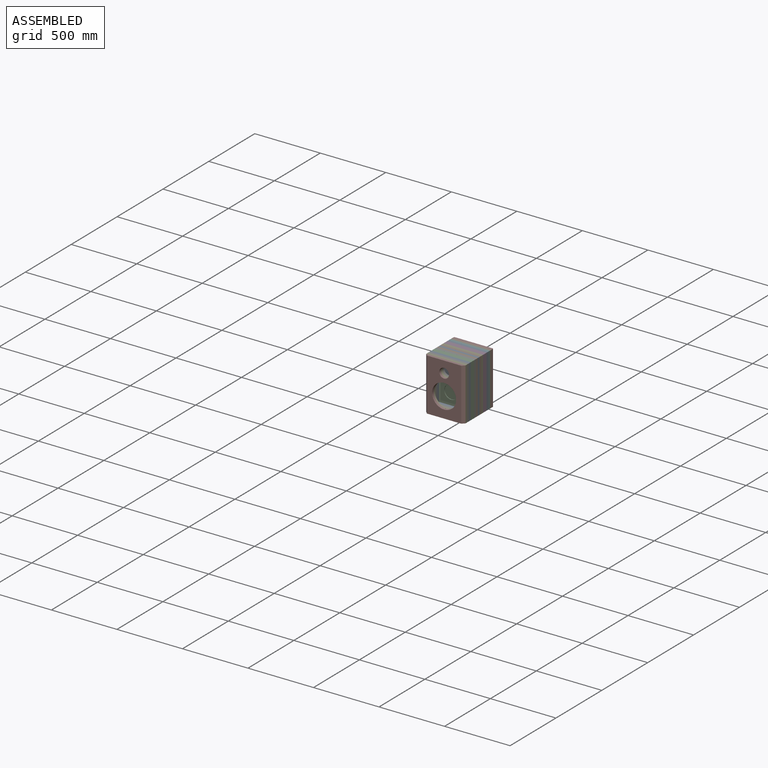
[diagram: assembled view]
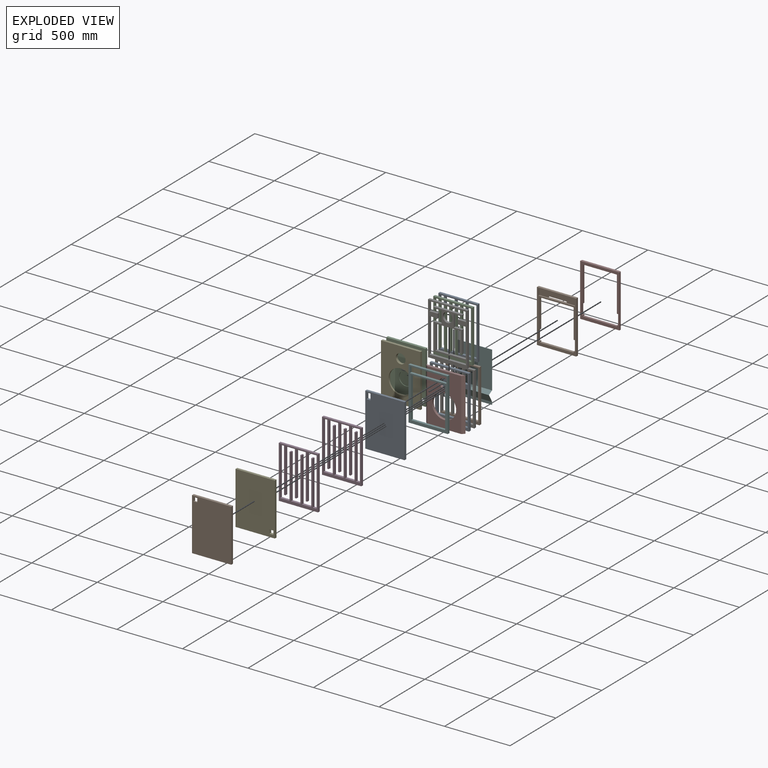
[diagram: exploded view]
GUIDED TOUR — MATED ASSEMBLY (Onshape document a08b8a4d7ae8b5d86f2d0922, AutoMate assembly a08b8a4d7ae8b5d86f2d0922_91ecea3c925a992e2403d908_82c07527d75c310c71b328ae_default)

This assembly has 18 components, labeled P0..P17 below (a component is one placed occurrence of a part; the same part can appear more than once), held together by 17 mates. A mate is a constraint between two components; its type names the relative motion it leaves free:
  FASTENED — locks the two components together rigidly (no relative motion).
Axis/direction vectors are unit vectors and 'through' points are millimeter coordinates, both in the assembly's world frame.

MATES
  1. FASTENED "Fastened 7": P14 <-> P10, direction (0.000, -1.000, 0.000) through (-13.29, 199.12, -46.56) mm
  2. FASTENED "Fastened 11": P4 <-> P9, direction (0.000, -1.000, 0.000) through (-13.29, 275.12, -46.56) mm
  3. FASTENED "Fastened 3": P6 <-> P8, direction (0.000, 1.000, 0.000) through (-13.29, 142.12, -46.56) mm
  4. FASTENED "Fastened 4": P7 <-> P1, direction (0.000, -1.000, 0.000) through (-13.29, 389.12, -46.56) mm
  5. FASTENED "Fastened 15": P0 <-> P5, direction (0.000, 1.000, 0.000) through (-13.29, 351.12, -46.56) mm
  6. FASTENED "Fastened 5": P2 <-> P8, direction (0.000, -1.000, 0.000) through (-13.29, 161.12, -46.56) mm
  7. FASTENED "Fastened 8": P14 <-> P17, direction (0.000, 1.000, 0.000) through (-13.29, 218.12, -46.56) mm
  8. FASTENED "Fastened 9": P17 <-> P16, direction (0.000, 1.000, 0.000) through (-13.29, 237.12, -46.56) mm
  9. FASTENED "Fastened 12": P4 <-> P3, direction (0.000, 1.000, 0.000) through (-13.29, 294.12, -46.56) mm
  10. FASTENED "Fastened 14": P11 <-> P0, direction (0.000, 1.000, 0.000) through (-13.29, 332.12, -46.56) mm
  11. FASTENED "Fastened 16": P5 <-> P1, direction (0.000, 1.000, 0.000) through (-13.29, 370.12, -46.56) mm
  12. FASTENED "Fastened 17": P7 <-> P13, direction (0.000, 1.000, 0.000) through (-13.29, 406.12, 343.44) mm
  13. FASTENED "Fastened 2": P6 <-> P12, direction (0.000, -1.000, 0.000) through (-13.29, 123.12, -46.56) mm
  14. FASTENED "Fastened 6": P2 <-> P10, direction (0.000, 1.000, 0.000) through (-13.29, 180.12, -46.56) mm
  15. FASTENED "Fastened 13": P3 <-> P11, direction (0.000, 1.000, 0.000) through (-13.29, 313.12, -46.56) mm
  16. FASTENED "Fastened 1": P12 <-> P15, direction (0.000, -1.000, 0.000) through (-13.29, 104.12, -46.56) mm
  17. FASTENED "Fastened 10": P16 <-> P9, direction (0.000, 1.000, 0.000) through (-13.29, 256.12, -46.56) mm

ASSEMBLY ORDER
  1. P13 — the base component [order verified]
  2. P7 [order verified]
  3. P1 [order verified]
  4. P5 [order verified]
  5. P0 [order verified]
  6. P11 [order verified]
  7. P3 [order verified]
  8. P4 [order verified]
  9. P9 [order verified]
  10. P16 [order verified]
  11. P17 [order verified]
  12. P14 [order verified]
  13. P10 [order verified]
  14. P2 [order verified]
  15. P8 [order verified]
  16. P6 [order verified]
  17. P12 [order verified]
  18. P15 [order verified]
Order-tag legend:
  [order verified] — this step's position reverses a verified removal order: the component was checked to insert without passing through the ones already placed.

Of the 18 components, 10 carry the full construction recipe — the FeatureScript program that regenerates the part's solid from scratch; the rest are supplied as boundary geometry only.
Because this assembly has more than 12 components, the tour below covers the 12 most significant ones individually (every recipe-attached component first, then the largest by part volume), in assembly order; the remaining 6 are summarized together in a grouped section at the end.
Each toured component is shown spotlighted twice — in the assembled view, then in the exploded view, where a leader line traces a displaced component back to its assembled socket (saturated green if recipe-attached, orange if geometry-only; every other component desaturated gray) — followed by its recipe or geometry summary and the mates that hold it.
NOTE — this tour is split across 2 documents so each fits a 32k-token context. This is document 1: the component sections continue in the remaining 1 document, each repeating the header above.
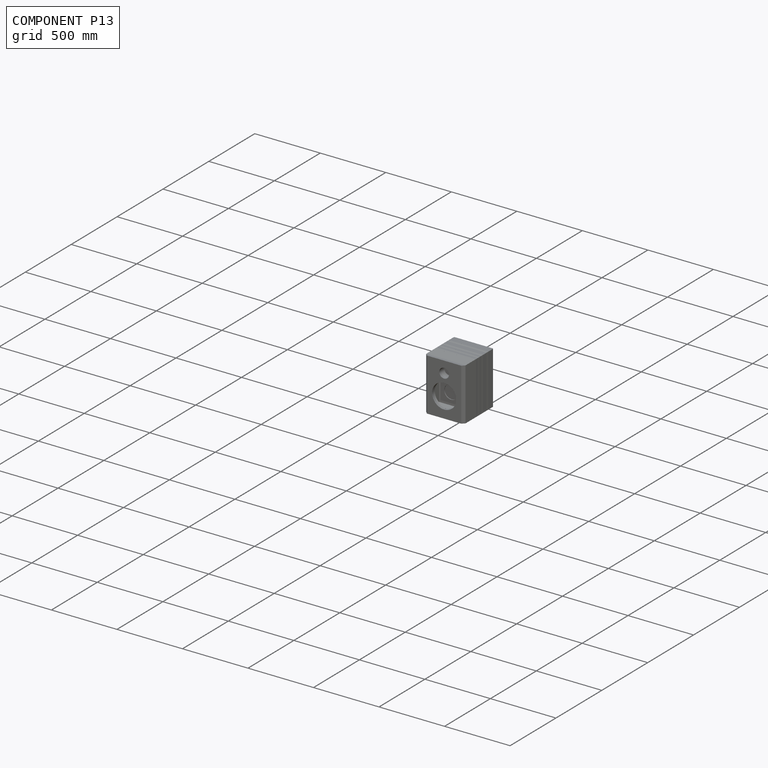
[diagram: component P13 — assembled]
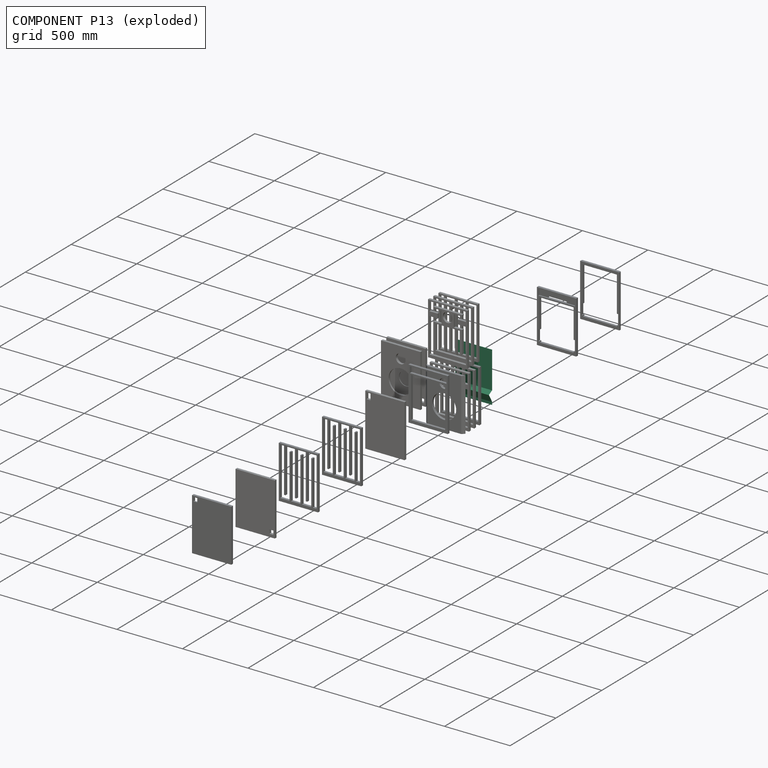
[diagram: component P13 — exploded]
COMPONENT P13 — recipe-attached (CADFS 00117854, mesh-verified: the recipe's output STEP matches this component's geometry to below the mesh-comparison resolution (tessellation chordal tolerance ~0.71 mm)).
Held by: FASTENED mate "Fastened 17" to P7.
Construction recipe (FeatureScript — the CAD program that rebuilds this solid; sketch coordinates are in the units given by the * unit suffixes, e.g. mm):

FeatureScript 1511;
import(path : "onshape/std/geometry.fs", version : "1511.0");
import(path : "onshape/std/common.fs", version : "1511.0");
const mm = millimeter;
const VERTEX = EntityType.VERTEX;
const EDGE = EntityType.EDGE;
const FACE = EntityType.FACE;
const BODY = EntityType.BODY;
function v(x, y){return vector(x, y);}
function OD(order){return orderDisambiguation(order);}
function OSD(set){return originalSetDisambiguation(set);}
function TD(topology){return topologyDisambiguation(topology);}
function TDD(query){return trueDependencyDisambiguation(query);}
function sQuery(a, b, c) {return sketchEntityQuery(a, b, c);}

annotation { "Feature Type Name" : "Feature", "Feature Type Description" : "" }
export const myFeature = defineFeature(function(context is Context, id is Id, definition is map)
    precondition{}
    {
        {
            var Q0;
            Q0=qCreatedBy(makeId("Right.planeOp"),FACE);
            var sketch = newSketch(context, id + "F0", { "sketchPlane" : qUnion([Q0])});
            skLineSegment(sketch, "E0", {"start": v(-174.1, 371.83) * mm, "end": v(-174.1, 391.83) * mm});
            skLineSegment(sketch, "E1", {"start": v(-174.1, 391.83) * mm, "end": v(-208.74, 451.83) * mm});
            skLineSegment(sketch, "E2", {"start": v(-208.74, 451.83) * mm, "end": v(-174.1, 471.83) * mm});
            skLineSegment(sketch, "E3", {"start": v(-174.1, 471.83) * mm, "end": v(-174.1, 751.83) * mm});
            skLineSegment(sketch, "E4", {"start": v(-172.1, 371.83) * mm, "end": v(-172.1, 391.83) * mm});
            skLineSegment(sketch, "E5", {"start": v(-172.1, 391.83) * mm, "end": v(-206.74, 451.83) * mm});
            skLineSegment(sketch, "E6", {"start": v(-206.74, 451.83) * mm, "end": v(-172.1, 471.83) * mm});
            skLineSegment(sketch, "E7", {"start": v(-172.1, 471.83) * mm, "end": v(-172.1, 751.83) * mm});
            skLineSegment(sketch, "E8", {"start": v(-174.1, 751.83) * mm, "end": v(-172.1, 751.83) * mm});
            skLineSegment(sketch, "E9", {"start": v(-174.1, 371.83) * mm, "end": v(-172.1, 371.83) * mm});
            skSolve(sketch);
        }
        {
            var Q0;
            Q0 = qSketchRegion(id + "F0", true);
            extrude(context, id + "F1", {"entities" : qUnion([Q0]), "depth" : 280 * mm});
        }
    });
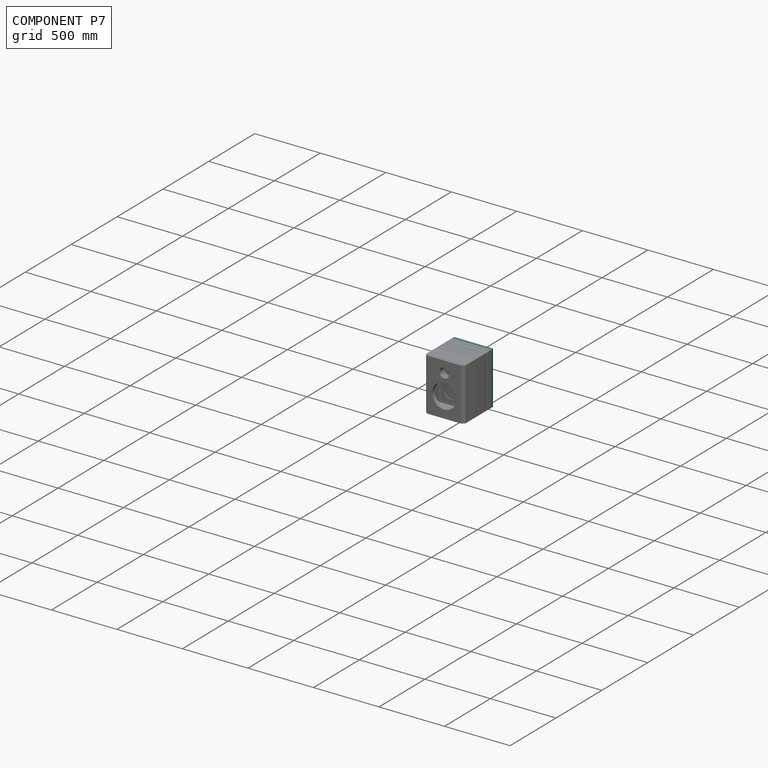
[diagram: component P7 — assembled]
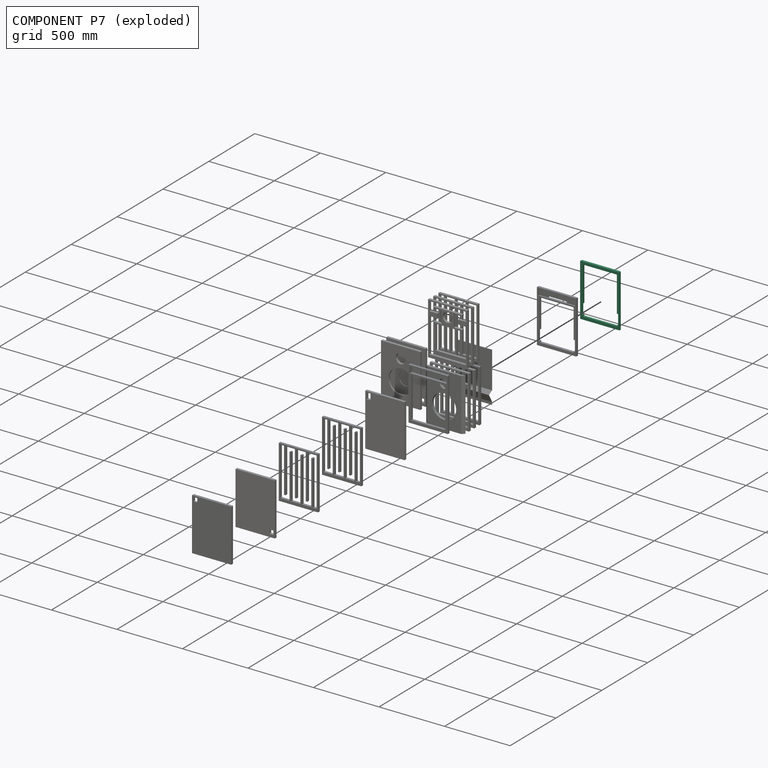
[diagram: component P7 — exploded]
COMPONENT P7 — recipe-attached (CADFS 00117853, mesh-verified: the recipe's output STEP matches this component's geometry to below the mesh-comparison resolution (tessellation chordal tolerance ~0.751 mm)).
Held by: FASTENED mate "Fastened 4" to P1; FASTENED mate "Fastened 17" to P13.
Construction recipe (FeatureScript — the CAD program that rebuilds this solid; sketch coordinates are in the units given by the * unit suffixes, e.g. mm):

FeatureScript 1511;
import(path : "onshape/std/geometry.fs", version : "1511.0");
import(path : "onshape/std/common.fs", version : "1511.0");
const mm = millimeter;
const VERTEX = EntityType.VERTEX;
const EDGE = EntityType.EDGE;
const FACE = EntityType.FACE;
const BODY = EntityType.BODY;
function v(x, y){return vector(x, y);}
function OD(order){return orderDisambiguation(order);}
function OSD(set){return originalSetDisambiguation(set);}
function TD(topology){return topologyDisambiguation(topology);}
function TDD(query){return trueDependencyDisambiguation(query);}
function sQuery(a, b, c) {return sketchEntityQuery(a, b, c);}

annotation { "Feature Type Name" : "Feature", "Feature Type Description" : "" }
export const myFeature = defineFeature(function(context is Context, id is Id, definition is map)
    precondition{}
    {
        {
            var Q0;
            Q0=qCreatedBy(makeId("Front.planeOp"),FACE);
            var sketch = newSketch(context, id + "F0", { "sketchPlane" : qUnion([Q0])});
            skLineSegment(sketch, "E0.bottom", {"start": v(-181.72, 427.2) * mm, "end": v(118.28, 427.2) * mm});
            skLineSegment(sketch, "E0.top", {"start": v(-181.72, 27.2) * mm, "end": v(118.28, 27.2) * mm});
            skLineSegment(sketch, "E0.left", {"start": v(-181.72, 427.2) * mm, "end": v(-181.72, 27.2) * mm});
            skLineSegment(sketch, "E0.right", {"start": v(118.28, 427.2) * mm, "end": v(118.28, 27.2) * mm});
            skSolve(sketch);
        }
        {
            var Q0;
            Q0=makeQuery(id+"F0.imprint","IMPRINT",FACE,{"disambiguationData":[TD([[makeQuery(id+"F0.imprint","IMPRINT",EDGE,{"derivedFrom":sQuery(id+"F0.wireOp",EDGE,"E0.bottom")}),-1.0]])]});
            extrude(context, id + "F1", {"entities" : qUnion([Q0]), "depth" : 19 * mm});
        }
        {
            var Q0;
            Q0=makeQuery(id+"F1.opExtrude","CAP_FACE",FACE,{"disambiguationData":[OSD([sQuery(id+"F0.wireOp",EDGE,"E0.bottom"),sQuery(id+"F0.wireOp",EDGE,"E0.top"),sQuery(id+"F0.wireOp",EDGE,"E0.left"),sQuery(id+"F0.wireOp",EDGE,"E0.right")])],"isStart":true});
            var sketch = newSketch(context, id + "F2", { "sketchPlane" : qUnion([Q0])});
            skLineSegment(sketch, "E1.bottom", {"start": v(-108.28, 417.2) * mm, "end": v(171.72, 417.2) * mm});
            skLineSegment(sketch, "E1.top", {"start": v(-108.28, 37.2) * mm, "end": v(171.72, 37.2) * mm});
            skLineSegment(sketch, "E1.left", {"start": v(-108.28, 417.2) * mm, "end": v(-108.28, 37.2) * mm});
            skLineSegment(sketch, "E1.right", {"start": v(171.72, 417.2) * mm, "end": v(171.72, 37.2) * mm});
            skSolve(sketch);
        }
        {
            var Q0;
            Q0 = qSketchRegion(id + "F2", true);
            extrude(context, id + "F3", {"entities" : qUnion([Q0]), "operationType" : NewBodyOperationType.REMOVE, "oppositeDirection" : true, "depth" : 2 * mm});
        }
        {
            var Q0;
            Q0=makeQuery(id+"F3.boolean.opBoolean","COPY",FACE,{"derivedFrom":makeQuery(id+"F3.opExtrude","CAP_FACE",FACE,{"disambiguationData":[OSD([sQuery(id+"F2.wireOp",EDGE,"E1.bottom"),sQuery(id+"F2.wireOp",EDGE,"E1.top"),sQuery(id+"F2.wireOp",EDGE,"E1.left"),sQuery(id+"F2.wireOp",EDGE,"E1.right")])],"isStart":false})});
            var sketch = newSketch(context, id + "F4", { "sketchPlane" : qUnion([Q0])});
            skLineSegment(sketch, "E2.bottom", {"start": v(-98.28, 407.2) * mm, "end": v(161.72, 407.2) * mm});
            skLineSegment(sketch, "E2.top", {"start": v(-98.28, 49.2) * mm, "end": v(161.72, 49.2) * mm});
            skLineSegment(sketch, "E2.left", {"start": v(-98.28, 407.2) * mm, "end": v(-98.28, 49.2) * mm});
            skLineSegment(sketch, "E2.right", {"start": v(161.72, 407.2) * mm, "end": v(161.72, 49.2) * mm});
            skSolve(sketch);
        }
        {
            var Q0;
            Q0 = qSketchRegion(id + "F4", true);
            extrude(context, id + "F5", {"entities" : qUnion([Q0]), "operationType" : NewBodyOperationType.REMOVE, "oppositeDirection" : true, "depth" : 17 * mm});
        }
        {
            var Q0;
            Q0=makeQuery(id+"F1.opExtrude","CAP_EDGE",EDGE,{"disambiguationData":[OSD([sQuery(id+"F0.wireOp",EDGE,"E0.right")])],"isStart":true});
            var Q1;
            Q1=makeQuery(id+"F1.opExtrude","CAP_EDGE",EDGE,{"disambiguationData":[OSD([sQuery(id+"F0.wireOp",EDGE,"E0.left")])],"isStart":true});
            chamfer(context, id + "F6", {"entities" : qUnion([Q0, Q1]), "width" : 5 * mm, "tangentPropagation" : true});
        }
        {
            var Q0;
            Q0=makeQuery(id+"F3.boolean.opBoolean","COPY",FACE,{"derivedFrom":makeQuery(id+"F3.opExtrude","CAP_FACE",FACE,{"disambiguationData":[OSD([sQuery(id+"F2.wireOp",EDGE,"E1.bottom"),sQuery(id+"F2.wireOp",EDGE,"E1.top"),sQuery(id+"F2.wireOp",EDGE,"E1.left"),sQuery(id+"F2.wireOp",EDGE,"E1.right")])],"isStart":false})});
            var sketch = newSketch(context, id + "F7", { "sketchPlane" : qUnion([Q0])});
            skLineSegment(sketch, "E3.bottom", {"start": v(-108.28, 137.2) * mm, "end": v(-98.28, 137.2) * mm});
            skLineSegment(sketch, "E3.top", {"start": v(-108.28, 57.2) * mm, "end": v(-98.28, 57.2) * mm});
            skLineSegment(sketch, "E3.left", {"start": v(-108.28, 137.2) * mm, "end": v(-108.28, 57.2) * mm});
            skLineSegment(sketch, "E3.right", {"start": v(-98.28, 137.2) * mm, "end": v(-98.28, 57.2) * mm});
            skSolve(sketch);
        }
        {
            var Q0;
            Q0 = qSketchRegion(id + "F7", true);
            extrude(context, id + "F8", {"entities" : qUnion([Q0]), "operationType" : NewBodyOperationType.REMOVE, "oppositeDirection" : true, "depth" : 17 * mm});
        }
        {
            var Q0;
            Q0=makeQuery(id+"F3.boolean.opBoolean","COPY",FACE,{"derivedFrom":makeQuery(id+"F3.opExtrude","CAP_FACE",FACE,{"disambiguationData":[OSD([sQuery(id+"F2.wireOp",EDGE,"E1.bottom"),sQuery(id+"F2.wireOp",EDGE,"E1.top"),sQuery(id+"F2.wireOp",EDGE,"E1.left"),sQuery(id+"F2.wireOp",EDGE,"E1.right")])],"isStart":false})});
            var sketch = newSketch(context, id + "F9", { "sketchPlane" : qUnion([Q0])});
            skLineSegment(sketch, "E4.bottom", {"start": v(161.72, 137.2) * mm, "end": v(171.72, 137.2) * mm});
            skLineSegment(sketch, "E4.top", {"start": v(161.72, 57.2) * mm, "end": v(171.72, 57.2) * mm});
            skLineSegment(sketch, "E4.left", {"start": v(161.72, 137.2) * mm, "end": v(161.72, 57.2) * mm});
            skLineSegment(sketch, "E4.right", {"start": v(171.72, 137.2) * mm, "end": v(171.72, 57.2) * mm});
            skSolve(sketch);
        }
        {
            var Q0;
            Q0 = qSketchRegion(id + "F9", true);
            extrude(context, id + "F10", {"entities" : qUnion([Q0]), "operationType" : NewBodyOperationType.REMOVE, "oppositeDirection" : true, "depth" : 17 * mm});
        }
    });
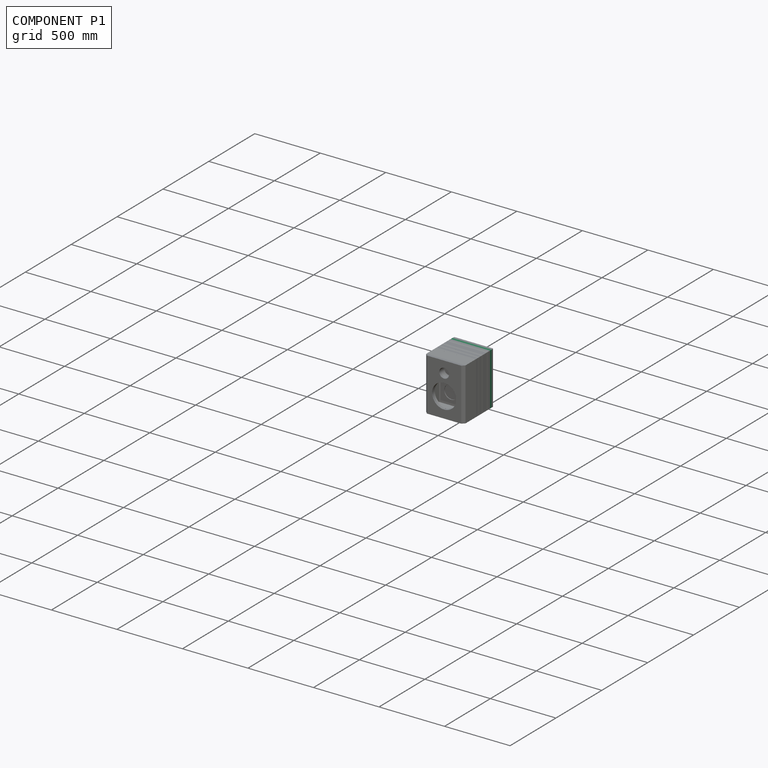
[diagram: component P1 — assembled]
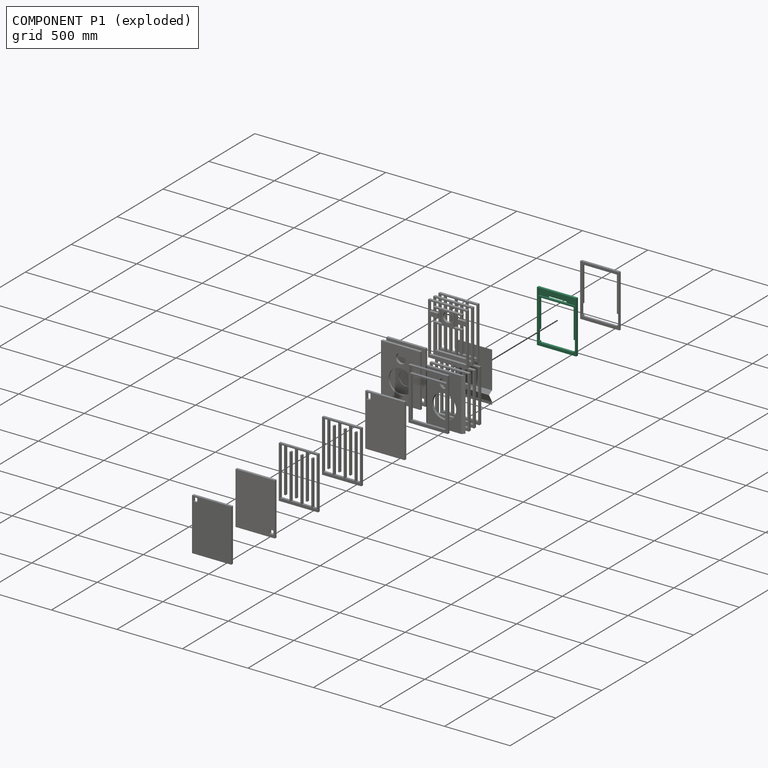
[diagram: component P1 — exploded]
COMPONENT P1 — recipe-attached (CADFS 00117852, mesh-verified: the recipe's output STEP matches this component's geometry to below the mesh-comparison resolution (tessellation chordal tolerance ~0.751 mm)).
Held by: FASTENED mate "Fastened 4" to P7; FASTENED mate "Fastened 16" to P5.
Construction recipe (FeatureScript — the CAD program that rebuilds this solid; sketch coordinates are in the units given by the * unit suffixes, e.g. mm):

FeatureScript 1511;
import(path : "onshape/std/geometry.fs", version : "1511.0");
import(path : "onshape/std/common.fs", version : "1511.0");
const mm = millimeter;
const VERTEX = EntityType.VERTEX;
const EDGE = EntityType.EDGE;
const FACE = EntityType.FACE;
const BODY = EntityType.BODY;
function v(x, y){return vector(x, y);}
function OD(order){return orderDisambiguation(order);}
function OSD(set){return originalSetDisambiguation(set);}
function TD(topology){return topologyDisambiguation(topology);}
function TDD(query){return trueDependencyDisambiguation(query);}
function sQuery(a, b, c) {return sketchEntityQuery(a, b, c);}

annotation { "Feature Type Name" : "Feature", "Feature Type Description" : "" }
export const myFeature = defineFeature(function(context is Context, id is Id, definition is map)
    precondition{}
    {
        {
            var Q0;
            Q0=qCreatedBy(makeId("Front.planeOp"),FACE);
            var sketch = newSketch(context, id + "F0", { "sketchPlane" : qUnion([Q0])});
            skLineSegment(sketch, "E0.bottom", {"start": v(-144.68, 130.84) * mm, "end": v(155.32, 130.84) * mm});
            skLineSegment(sketch, "E0.top", {"start": v(-144.68, -269.16) * mm, "end": v(155.32, -269.16) * mm});
            skLineSegment(sketch, "E0.left", {"start": v(-144.68, 130.84) * mm, "end": v(-144.68, -269.16) * mm});
            skLineSegment(sketch, "E0.right", {"start": v(155.32, 130.84) * mm, "end": v(155.32, -269.16) * mm});
            skSolve(sketch);
        }
        {
            var Q0;
            Q0 = qSketchRegion(id + "F0", true);
            extrude(context, id + "F1", {"entities" : qUnion([Q0]), "depth" : 19 * mm});
        }
        {
            var Q0;
            Q0=makeQuery(id+"F1.opExtrude","CAP_FACE",FACE,{"disambiguationData":[OSD([sQuery(id+"F0.wireOp",EDGE,"E0.bottom"),sQuery(id+"F0.wireOp",EDGE,"E0.top"),sQuery(id+"F0.wireOp",EDGE,"E0.left"),sQuery(id+"F0.wireOp",EDGE,"E0.right")])],"isStart":false});
            var sketch = newSketch(context, id + "F2", { "sketchPlane" : qUnion([Q0])});
            skLineSegment(sketch, "E1.bottom", {"start": v(-134.18, 120.84) * mm, "end": v(144.82, 120.84) * mm});
            skLineSegment(sketch, "E1.top", {"start": v(-134.18, 74.84) * mm, "end": v(144.82, 74.84) * mm});
            skLineSegment(sketch, "E1.left", {"start": v(-134.18, 120.84) * mm, "end": v(-134.18, 74.84) * mm});
            skLineSegment(sketch, "E1.right", {"start": v(144.82, 120.84) * mm, "end": v(144.82, 74.84) * mm});
            skSolve(sketch);
        }
        {
            var Q0;
            Q0 = qSketchRegion(id + "F2", true);
            extrude(context, id + "F3", {"entities" : qUnion([Q0]), "operationType" : NewBodyOperationType.REMOVE, "oppositeDirection" : true, "depth" : 10 * mm});
        }
        {
            var Q0;
            Q0=makeQuery(id+"F3.boolean.opBoolean","COPY",FACE,{"derivedFrom":makeQuery(id+"F3.opExtrude","CAP_FACE",FACE,{"disambiguationData":[OSD([sQuery(id+"F2.wireOp",EDGE,"E1.bottom"),sQuery(id+"F2.wireOp",EDGE,"E1.top"),sQuery(id+"F2.wireOp",EDGE,"E1.left"),sQuery(id+"F2.wireOp",EDGE,"E1.right")])],"isStart":false})});
            var sketch = newSketch(context, id + "F4", { "sketchPlane" : qUnion([Q0])});
            skLineSegment(sketch, "E2.bottom", {"start": v(-64.68, 84.84) * mm, "end": v(75.32, 84.84) * mm});
            skLineSegment(sketch, "E2.top", {"start": v(-64.68, 74.84) * mm, "end": v(75.32, 74.84) * mm});
            skLineSegment(sketch, "E2.left", {"start": v(-64.68, 84.84) * mm, "end": v(-64.68, 74.84) * mm});
            skLineSegment(sketch, "E2.right", {"start": v(75.32, 84.84) * mm, "end": v(75.32, 74.84) * mm});
            skSolve(sketch);
        }
        {
            var Q0;
            Q0 = qSketchRegion(id + "F4", true);
            extrude(context, id + "F5", {"entities" : qUnion([Q0]), "operationType" : NewBodyOperationType.REMOVE, "oppositeDirection" : true, "depth" : 10 * mm});
        }
        {
            var Q0;
            Q0=makeQuery(id+"F1.opExtrude","CAP_FACE",FACE,{"disambiguationData":[OSD([sQuery(id+"F0.wireOp",EDGE,"E0.bottom"),sQuery(id+"F0.wireOp",EDGE,"E0.top"),sQuery(id+"F0.wireOp",EDGE,"E0.left"),sQuery(id+"F0.wireOp",EDGE,"E0.right")])],"isStart":false});
            var sketch = newSketch(context, id + "F6", { "sketchPlane" : qUnion([Q0])});
            skLineSegment(sketch, "E3.bottom", {"start": v(-124.68, 64.84) * mm, "end": v(135.32, 64.84) * mm});
            skLineSegment(sketch, "E3.top", {"start": v(-124.68, -247.16) * mm, "end": v(135.32, -247.16) * mm});
            skLineSegment(sketch, "E3.left", {"start": v(-124.68, 64.84) * mm, "end": v(-124.68, -247.16) * mm});
            skLineSegment(sketch, "E3.right", {"start": v(135.32, 64.84) * mm, "end": v(135.32, -247.16) * mm});
            skSolve(sketch);
        }
        {
            var Q0;
            Q0 = qSketchRegion(id + "F6", true);
            extrude(context, id + "F7", {"entities" : qUnion([Q0]), "operationType" : NewBodyOperationType.REMOVE, "oppositeDirection" : true, "depth" : 19 * mm});
        }
        {
            var Q0;
            Q0=makeQuery(id+"F1.opExtrude","CAP_FACE",FACE,{"disambiguationData":[OSD([sQuery(id+"F0.wireOp",EDGE,"E0.bottom"),sQuery(id+"F0.wireOp",EDGE,"E0.top"),sQuery(id+"F0.wireOp",EDGE,"E0.left"),sQuery(id+"F0.wireOp",EDGE,"E0.right")])],"isStart":true});
            var sketch = newSketch(context, id + "F8", { "sketchPlane" : qUnion([Q0])});
            skLineSegment(sketch, "E4.bottom", {"start": v(-135.32, -159.16) * mm, "end": v(-145.32, -159.16) * mm});
            skLineSegment(sketch, "E4.top", {"start": v(-135.32, -239.16) * mm, "end": v(-145.32, -239.16) * mm});
            skLineSegment(sketch, "E4.left", {"start": v(-135.32, -159.16) * mm, "end": v(-135.32, -239.16) * mm});
            skLineSegment(sketch, "E4.right", {"start": v(-145.32, -159.16) * mm, "end": v(-145.32, -239.16) * mm});
            skSolve(sketch);
        }
        {
            var Q0;
            Q0 = qSketchRegion(id + "F8", true);
            extrude(context, id + "F9", {"entities" : qUnion([Q0]), "operationType" : NewBodyOperationType.REMOVE, "oppositeDirection" : true, "depth" : 19 * mm});
        }
        {
            var Q0;
            Q0=makeQuery(id+"F1.opExtrude","CAP_FACE",FACE,{"disambiguationData":[OSD([sQuery(id+"F0.wireOp",EDGE,"E0.bottom"),sQuery(id+"F0.wireOp",EDGE,"E0.top"),sQuery(id+"F0.wireOp",EDGE,"E0.left"),sQuery(id+"F0.wireOp",EDGE,"E0.right")])],"isStart":true});
            var sketch = newSketch(context, id + "F10", { "sketchPlane" : qUnion([Q0])});
            skLineSegment(sketch, "E5.bottom", {"start": v(124.68, -159.16) * mm, "end": v(134.68, -159.16) * mm});
            skLineSegment(sketch, "E5.top", {"start": v(124.68, -239.16) * mm, "end": v(134.68, -239.16) * mm});
            skLineSegment(sketch, "E5.left", {"start": v(124.68, -159.16) * mm, "end": v(124.68, -239.16) * mm});
            skLineSegment(sketch, "E5.right", {"start": v(134.68, -159.16) * mm, "end": v(134.68, -239.16) * mm});
            skSolve(sketch);
        }
        {
            var Q0;
            Q0 = qSketchRegion(id + "F10", true);
            extrude(context, id + "F11", {"entities" : qUnion([Q0]), "operationType" : NewBodyOperationType.REMOVE, "oppositeDirection" : true, "depth" : 19 * mm});
        }
    });
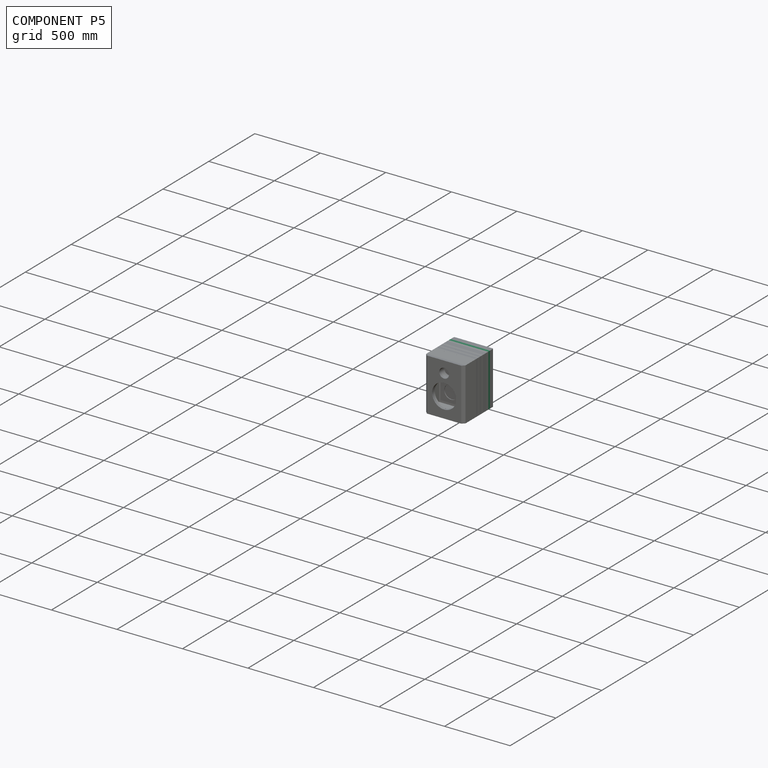
[diagram: component P5 — assembled]
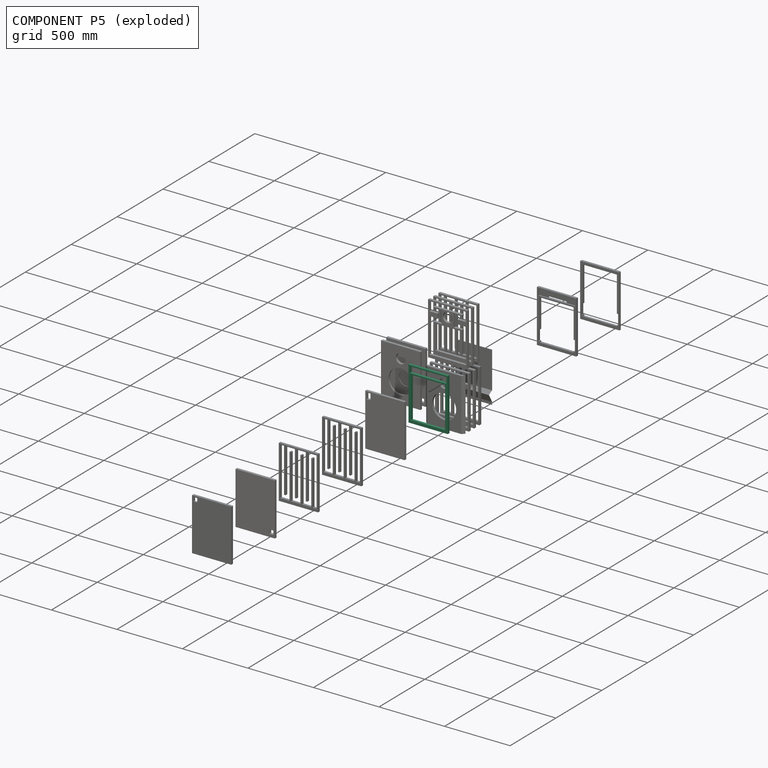
[diagram: component P5 — exploded]
COMPONENT P5 — recipe-attached (CADFS 00117851, mesh-verified: the recipe's output STEP matches this component's geometry to below the mesh-comparison resolution (tessellation chordal tolerance ~0.751 mm)).
Held by: FASTENED mate "Fastened 15" to P0; FASTENED mate "Fastened 16" to P1.
Construction recipe (FeatureScript — the CAD program that rebuilds this solid; sketch coordinates are in the units given by the * unit suffixes, e.g. mm):

FeatureScript 1511;
import(path : "onshape/std/geometry.fs", version : "1511.0");
import(path : "onshape/std/common.fs", version : "1511.0");
const mm = millimeter;
const VERTEX = EntityType.VERTEX;
const EDGE = EntityType.EDGE;
const FACE = EntityType.FACE;
const BODY = EntityType.BODY;
function v(x, y){return vector(x, y);}
function OD(order){return orderDisambiguation(order);}
function OSD(set){return originalSetDisambiguation(set);}
function TD(topology){return topologyDisambiguation(topology);}
function TDD(query){return trueDependencyDisambiguation(query);}
function sQuery(a, b, c) {return sketchEntityQuery(a, b, c);}

annotation { "Feature Type Name" : "Feature", "Feature Type Description" : "" }
export const myFeature = defineFeature(function(context is Context, id is Id, definition is map)
    precondition{}
    {
        {
            var Q0;
            Q0=qCreatedBy(makeId("Front.planeOp"),FACE);
            var sketch = newSketch(context, id + "F0", { "sketchPlane" : qUnion([Q0])});
            skLineSegment(sketch, "E0.bottom", {"start": v(-165.58, 178.87) * mm, "end": v(134.42, 178.87) * mm});
            skLineSegment(sketch, "E0.top", {"start": v(-165.58, -221.13) * mm, "end": v(134.42, -221.13) * mm});
            skLineSegment(sketch, "E0.left", {"start": v(-165.58, 178.87) * mm, "end": v(-165.58, -221.13) * mm});
            skLineSegment(sketch, "E0.right", {"start": v(134.42, 178.87) * mm, "end": v(134.42, -221.13) * mm});
            skSolve(sketch);
        }
        {
            var Q0;
            Q0 = qSketchRegion(id + "F0", true);
            extrude(context, id + "F1", {"entities" : qUnion([Q0]), "depth" : 19 * mm});
        }
        {
            var Q0;
            Q0=makeQuery(id+"F1.opExtrude","CAP_FACE",FACE,{"disambiguationData":[OSD([sQuery(id+"F0.wireOp",EDGE,"E0.bottom"),sQuery(id+"F0.wireOp",EDGE,"E0.top"),sQuery(id+"F0.wireOp",EDGE,"E0.left"),sQuery(id+"F0.wireOp",EDGE,"E0.right")])],"isStart":false});
            var sketch = newSketch(context, id + "F2", { "sketchPlane" : qUnion([Q0])});
            skLineSegment(sketch, "E1.bottom", {"start": v(-155.08, 168.87) * mm, "end": v(123.92, 168.87) * mm});
            skLineSegment(sketch, "E1.top", {"start": v(-155.08, 122.87) * mm, "end": v(123.92, 122.87) * mm});
            skLineSegment(sketch, "E1.left", {"start": v(-155.08, 168.87) * mm, "end": v(-155.08, 122.87) * mm});
            skLineSegment(sketch, "E1.right", {"start": v(123.92, 168.87) * mm, "end": v(123.92, 122.87) * mm});
            skSolve(sketch);
        }
        {
            var Q0;
            Q0 = qSketchRegion(id + "F2", true);
            extrude(context, id + "F3", {"entities" : qUnion([Q0]), "operationType" : NewBodyOperationType.REMOVE, "oppositeDirection" : true, "depth" : 19 * mm});
        }
        {
            var Q0;
            Q0=makeQuery(id+"F1.opExtrude","CAP_FACE",FACE,{"disambiguationData":[OSD([sQuery(id+"F0.wireOp",EDGE,"E0.bottom"),sQuery(id+"F0.wireOp",EDGE,"E0.top"),sQuery(id+"F0.wireOp",EDGE,"E0.left"),sQuery(id+"F0.wireOp",EDGE,"E0.right")])],"isStart":false});
            var sketch = newSketch(context, id + "F4", { "sketchPlane" : qUnion([Q0])});
            skLineSegment(sketch, "E2.bottom", {"start": v(-145.58, 112.87) * mm, "end": v(114.42, 112.87) * mm});
            skLineSegment(sketch, "E2.top", {"start": v(-145.58, -199.13) * mm, "end": v(114.42, -199.13) * mm});
            skLineSegment(sketch, "E2.left", {"start": v(-145.58, 112.87) * mm, "end": v(-145.58, -199.13) * mm});
            skLineSegment(sketch, "E2.right", {"start": v(114.42, 112.87) * mm, "end": v(114.42, -199.13) * mm});
            skSolve(sketch);
        }
        {
            var Q0;
            Q0 = qSketchRegion(id + "F4", true);
            extrude(context, id + "F5", {"entities" : qUnion([Q0]), "operationType" : NewBodyOperationType.REMOVE, "oppositeDirection" : true, "depth" : 19 * mm});
        }
    });
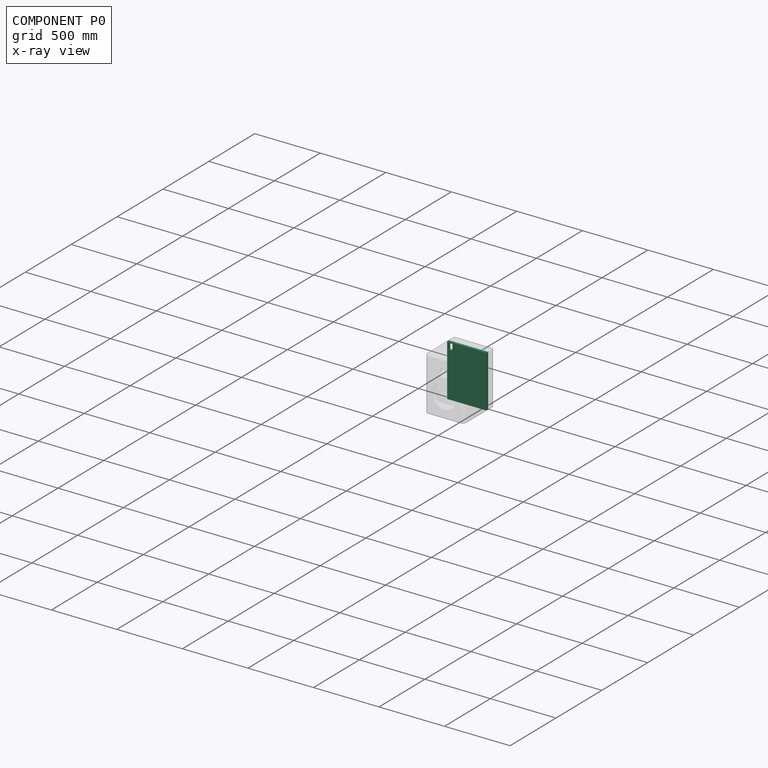
[diagram: component P0 — x-ray view]
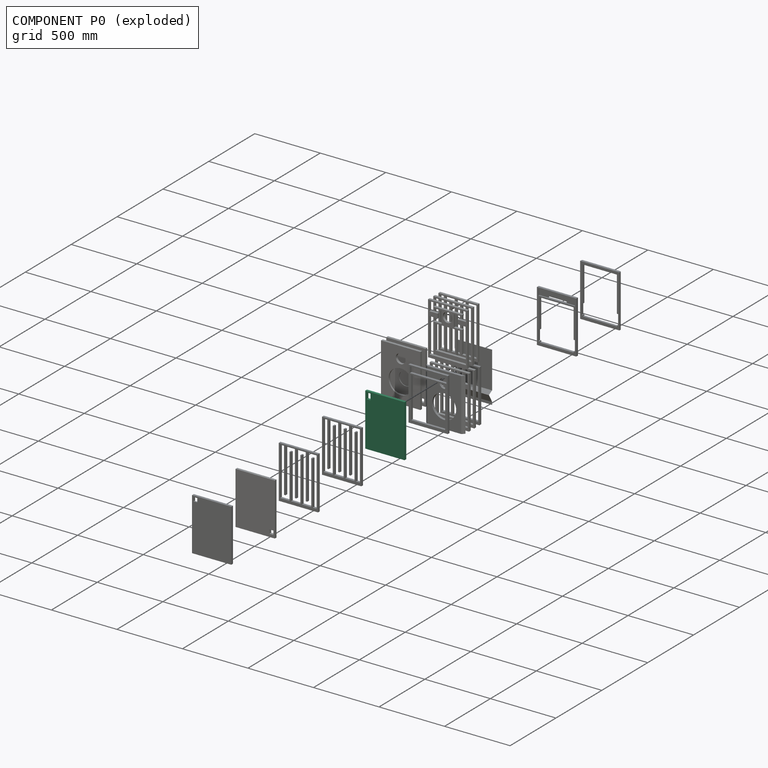
[diagram: component P0 — exploded]
COMPONENT P0 — recipe-attached (CADFS 00117850, mesh-verified: the recipe's output STEP matches this component's geometry to below the mesh-comparison resolution (tessellation chordal tolerance ~0.751 mm)).
Held by: FASTENED mate "Fastened 15" to P5; FASTENED mate "Fastened 14" to P11.
Construction recipe (FeatureScript — the CAD program that rebuilds this solid; sketch coordinates are in the units given by the * unit suffixes, e.g. mm):

FeatureScript 1511;
import(path : "onshape/std/geometry.fs", version : "1511.0");
import(path : "onshape/std/common.fs", version : "1511.0");
const mm = millimeter;
const VERTEX = EntityType.VERTEX;
const EDGE = EntityType.EDGE;
const FACE = EntityType.FACE;
const BODY = EntityType.BODY;
function v(x, y){return vector(x, y);}
function OD(order){return orderDisambiguation(order);}
function OSD(set){return originalSetDisambiguation(set);}
function TD(topology){return topologyDisambiguation(topology);}
function TDD(query){return trueDependencyDisambiguation(query);}
function sQuery(a, b, c) {return sketchEntityQuery(a, b, c);}

annotation { "Feature Type Name" : "Feature", "Feature Type Description" : "" }
export const myFeature = defineFeature(function(context is Context, id is Id, definition is map)
    precondition{}
    {
        {
            var Q0;
            Q0=qCreatedBy(makeId("Front.planeOp"),FACE);
            var sketch = newSketch(context, id + "F0", { "sketchPlane" : qUnion([Q0])});
            skLineSegment(sketch, "E0.bottom", {"start": v(-158.35, 389.36) * mm, "end": v(141.65, 389.36) * mm});
            skLineSegment(sketch, "E0.top", {"start": v(-158.35, -10.64) * mm, "end": v(141.65, -10.64) * mm});
            skLineSegment(sketch, "E0.left", {"start": v(-158.35, 389.36) * mm, "end": v(-158.35, -10.64) * mm});
            skLineSegment(sketch, "E0.right", {"start": v(141.65, 389.36) * mm, "end": v(141.65, -10.64) * mm});
            skSolve(sketch);
        }
        {
            var Q0;
            Q0 = qSketchRegion(id + "F0", true);
            extrude(context, id + "F1", {"entities" : qUnion([Q0]), "depth" : 19 * mm});
        }
        {
            var Q0;
            Q0=makeQuery(id+"F1.opExtrude","CAP_FACE",FACE,{"disambiguationData":[OSD([sQuery(id+"F0.wireOp",EDGE,"E0.bottom"),sQuery(id+"F0.wireOp",EDGE,"E0.top"),sQuery(id+"F0.wireOp",EDGE,"E0.left"),sQuery(id+"F0.wireOp",EDGE,"E0.right")])],"isStart":true});
            var sketch = newSketch(context, id + "F2", { "sketchPlane" : qUnion([Q0])});
            skLineSegment(sketch, "E1", {"start": v(147.85, 379.36) * mm, "end": v(147.85, 333.36) * mm});
            skLineSegment(sketch, "E2", {"start": v(147.85, 333.36) * mm, "end": v(-130.15, 333.36) * mm});
            skLineSegment(sketch, "E3", {"start": v(-130.15, 333.36) * mm, "end": v(-130.15, 379.36) * mm});
            skLineSegment(sketch, "E4", {"start": v(-130.15, 379.36) * mm, "end": v(147.85, 379.36) * mm});
            skSolve(sketch);
        }
        {
            var Q0;
            Q0 = qSketchRegion(id + "F2", true);
            extrude(context, id + "F3", {"entities" : qUnion([Q0]), "operationType" : NewBodyOperationType.REMOVE, "oppositeDirection" : true, "depth" : 10 * mm});
        }
        {
            var Q0;
            Q0=makeQuery(id+"F3.boolean.opBoolean","COPY",FACE,{"derivedFrom":makeQuery(id+"F3.opExtrude","CAP_FACE",FACE,{"disambiguationData":[OSD([sQuery(id+"F2.wireOp",EDGE,"E1"),sQuery(id+"F2.wireOp",EDGE,"E2"),sQuery(id+"F2.wireOp",EDGE,"E3"),sQuery(id+"F2.wireOp",EDGE,"E4")])],"isStart":false})});
            var sketch = newSketch(context, id + "F4", { "sketchPlane" : qUnion([Q0])});
            skLineSegment(sketch, "E5.bottom", {"start": v(147.85, 379.36) * mm, "end": v(117.85, 379.36) * mm});
            skLineSegment(sketch, "E5.top", {"start": v(147.85, 333.36) * mm, "end": v(117.85, 333.36) * mm});
            skLineSegment(sketch, "E5.left", {"start": v(147.85, 379.36) * mm, "end": v(147.85, 333.36) * mm});
            skLineSegment(sketch, "E5.right", {"start": v(117.85, 379.36) * mm, "end": v(117.85, 333.36) * mm});
            skSolve(sketch);
        }
        {
            var Q0;
            Q0 = qSketchRegion(id + "F4", true);
            extrude(context, id + "F5", {"entities" : qUnion([Q0]), "operationType" : NewBodyOperationType.REMOVE, "oppositeDirection" : true, "depth" : 10 * mm});
        }
        {
            var Q0;
            Q0=makeQuery(id+"F1.opExtrude","CAP_FACE",FACE,{"disambiguationData":[OSD([sQuery(id+"F0.wireOp",EDGE,"E0.bottom"),sQuery(id+"F0.wireOp",EDGE,"E0.top"),sQuery(id+"F0.wireOp",EDGE,"E0.left"),sQuery(id+"F0.wireOp",EDGE,"E0.right")])],"isStart":true});
            var sketch = newSketch(context, id + "F6", { "sketchPlane" : qUnion([Q0])});
            skLineSegment(sketch, "E6.bottom", {"start": v(-121.65, 323.36) * mm, "end": v(138.35, 323.36) * mm});
            skLineSegment(sketch, "E6.top", {"start": v(-121.65, 11.36) * mm, "end": v(138.35, 11.36) * mm});
            skLineSegment(sketch, "E6.left", {"start": v(-121.65, 323.36) * mm, "end": v(-121.65, 11.36) * mm});
            skLineSegment(sketch, "E6.right", {"start": v(138.35, 323.36) * mm, "end": v(138.35, 11.36) * mm});
            skSolve(sketch);
        }
        {
            var Q0;
            Q0 = qSketchRegion(id + "F6", true);
            extrude(context, id + "F7", {"entities" : qUnion([Q0]), "operationType" : NewBodyOperationType.REMOVE, "oppositeDirection" : true, "depth" : 10 * mm});
        }
    });
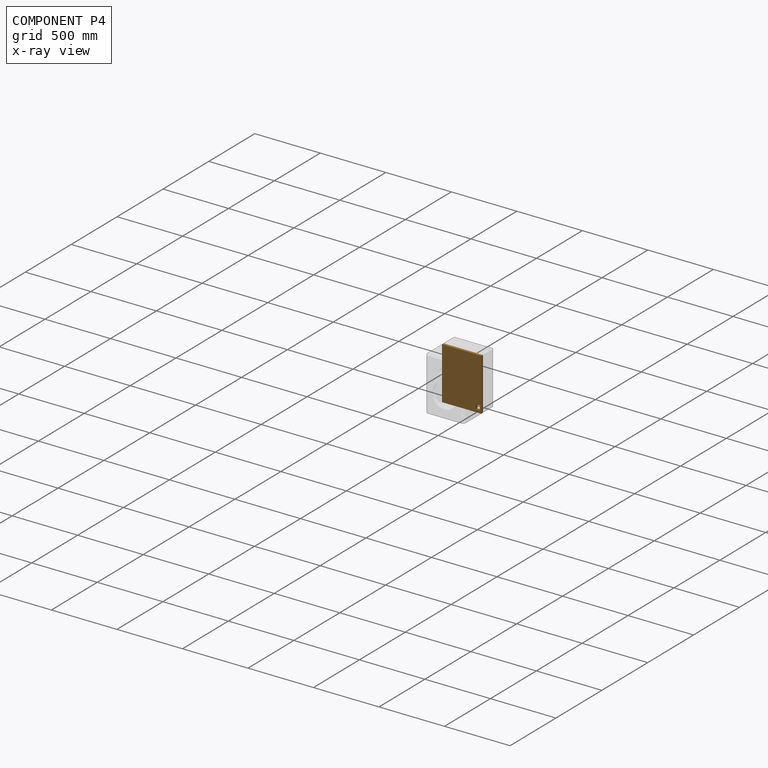
[diagram: component P4 — x-ray view]
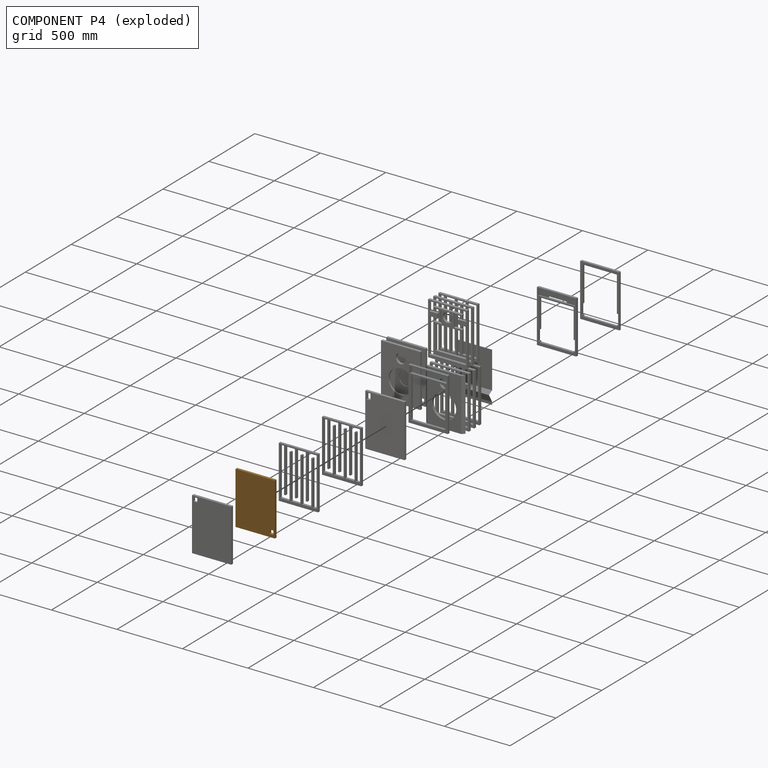
[diagram: component P4 — exploded]
COMPONENT P4 — geometry summary (no construction recipe available for this part):
  bounding box: 400.0 x 300.0 x 19.0 mm
  B-rep topology: 1 solid, 36 faces, 204 edges
  volume: 1635300 mm^3 (72% of its bounding box)
Held by: FASTENED mate "Fastened 11" to P9; FASTENED mate "Fastened 12" to P3.
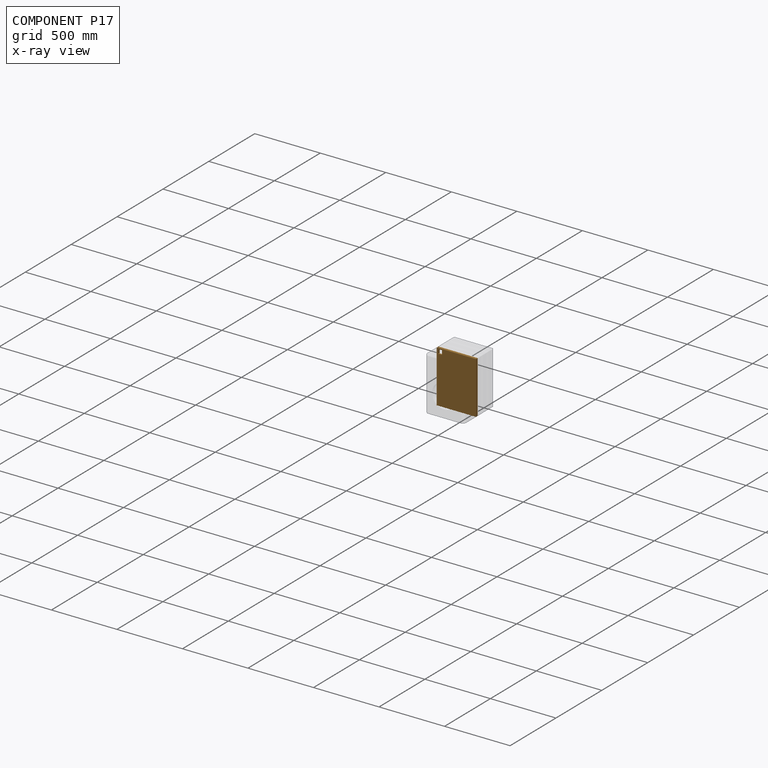
[diagram: component P17 — x-ray view]
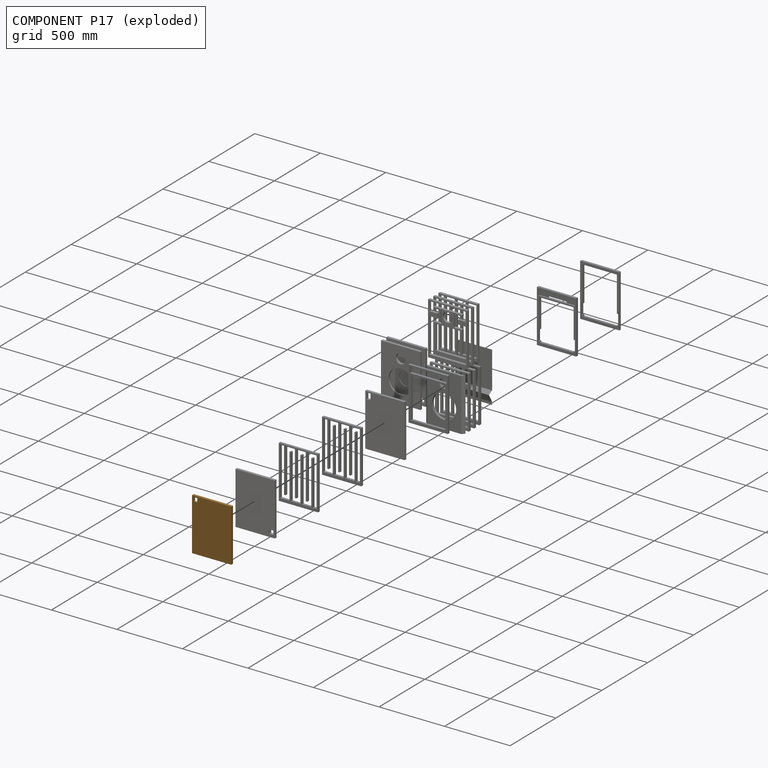
[diagram: component P17 — exploded]
COMPONENT P17 — geometry summary (no construction recipe available for this part):
  bounding box: 400.0 x 300.0 x 19.0 mm
  B-rep topology: 1 solid, 36 faces, 204 edges
  volume: 1635300 mm^3 (72% of its bounding box)
Held by: FASTENED mate "Fastened 8" to P14; FASTENED mate "Fastened 9" to P16.
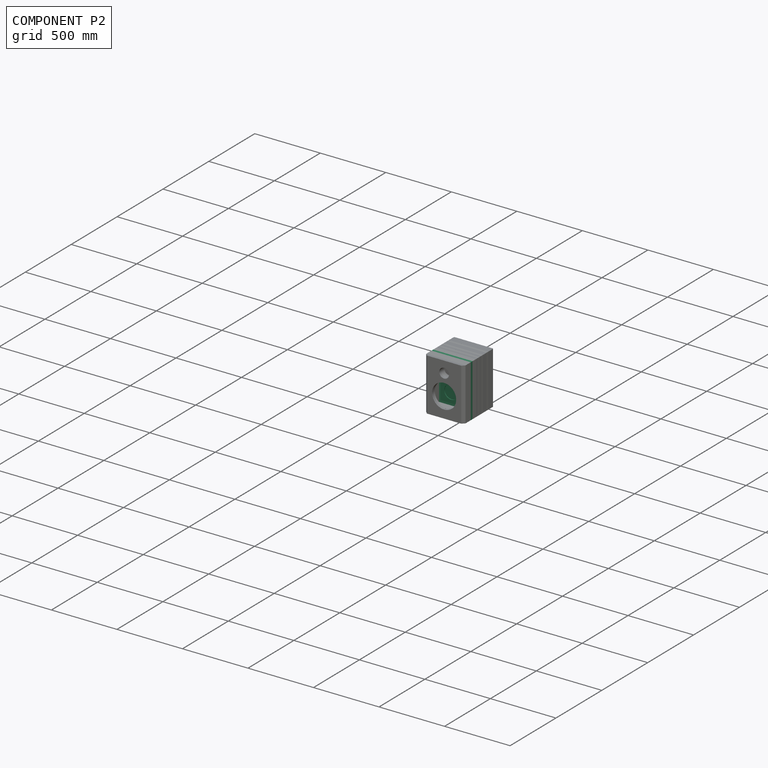
[diagram: component P2 — assembled]
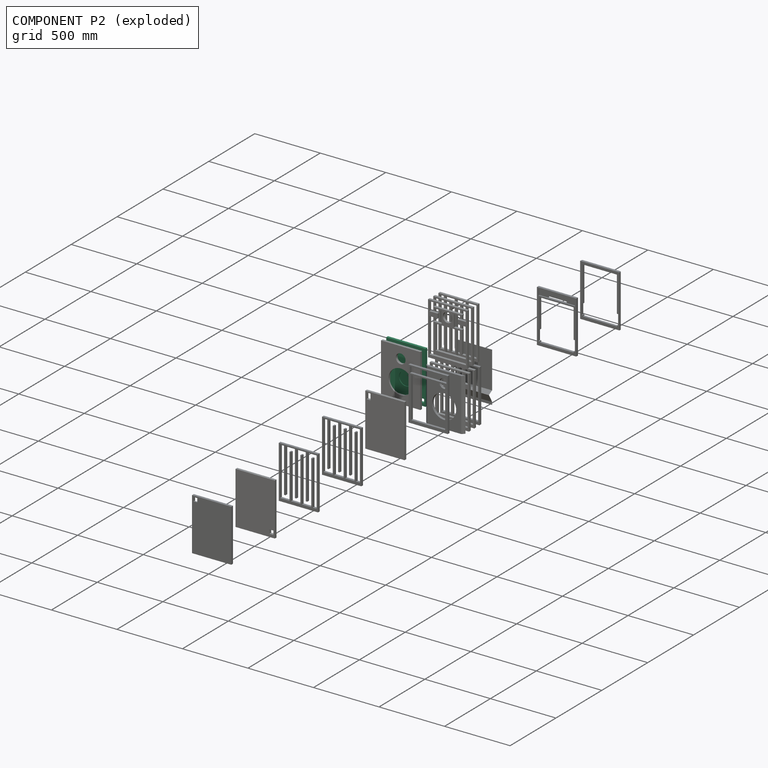
[diagram: component P2 — exploded]
COMPONENT P2 — recipe-attached (CADFS 00117841, mesh-verified: the recipe's output STEP matches this component's geometry to below the mesh-comparison resolution (tessellation chordal tolerance ~0.751 mm)).
Held by: FASTENED mate "Fastened 5" to P8; FASTENED mate "Fastened 6" to P10.
Construction recipe (FeatureScript — the CAD program that rebuilds this solid; sketch coordinates are in the units given by the * unit suffixes, e.g. mm):

FeatureScript 1511;
import(path : "onshape/std/geometry.fs", version : "1511.0");
import(path : "onshape/std/common.fs", version : "1511.0");
const mm = millimeter;
const VERTEX = EntityType.VERTEX;
const EDGE = EntityType.EDGE;
const FACE = EntityType.FACE;
const BODY = EntityType.BODY;
function v(x, y){return vector(x, y);}
function OD(order){return orderDisambiguation(order);}
function OSD(set){return originalSetDisambiguation(set);}
function TD(topology){return topologyDisambiguation(topology);}
function TDD(query){return trueDependencyDisambiguation(query);}
function sQuery(a, b, c) {return sketchEntityQuery(a, b, c);}

annotation { "Feature Type Name" : "Feature", "Feature Type Description" : "" }
export const myFeature = defineFeature(function(context is Context, id is Id, definition is map)
    precondition{}
    {
        {
            var Q0;
            Q0=qCreatedBy(makeId("Front.planeOp"),FACE);
            var sketch = newSketch(context, id + "F0", { "sketchPlane" : qUnion([Q0])});
            skLineSegment(sketch, "E0.bottom", {"start": v(-198.08, 243.93) * mm, "end": v(101.92, 243.93) * mm});
            skLineSegment(sketch, "E0.top", {"start": v(-198.08, -156.07) * mm, "end": v(101.92, -156.07) * mm});
            skLineSegment(sketch, "E0.left", {"start": v(-198.08, 243.93) * mm, "end": v(-198.08, -156.07) * mm});
            skLineSegment(sketch, "E0.right", {"start": v(101.92, 243.93) * mm, "end": v(101.92, -156.07) * mm});
            skSolve(sketch);
        }
        {
            var Q0;
            Q0 = qSketchRegion(id + "F0", true);
            extrude(context, id + "F1", {"entities" : qUnion([Q0]), "depth" : 19 * mm});
        }
        {
            var Q0;
            Q0=makeQuery(id+"F1.opExtrude","CAP_FACE",FACE,{"disambiguationData":[OSD([sQuery(id+"F0.wireOp",EDGE,"E0.bottom"),sQuery(id+"F0.wireOp",EDGE,"E0.top"),sQuery(id+"F0.wireOp",EDGE,"E0.left"),sQuery(id+"F0.wireOp",EDGE,"E0.right")])],"isStart":false});
            var sketch = newSketch(context, id + "F2", { "sketchPlane" : qUnion([Q0])});
            skCircle(sketch, "E1", {"center": v(-48.08, -1.57) * mm, "radius": 52.5 * mm});
            skPoint(sketch, "E1.centerSnap0", {"position": v(-48.08, -156.07) * mm});
            skSolve(sketch);
        }
        {
            var Q0;
            Q0=makeQuery(id+"F2.imprint","IMPRINT",FACE,{"disambiguationData":[TD([[makeQuery(id+"F2.imprint","IMPRINT",EDGE,{"derivedFrom":sQuery(id+"F2.wireOp",EDGE,"E1")}),1.0]])]});
            extrude(context, id + "F3", {"entities" : qUnion([Q0]), "operationType" : NewBodyOperationType.REMOVE, "oppositeDirection" : true, "depth" : 6 * mm});
        }
        {
            var Q0;
            Q0=makeQuery(id+"F1.opExtrude","CAP_FACE",FACE,{"disambiguationData":[OSD([sQuery(id+"F0.wireOp",EDGE,"E0.bottom"),sQuery(id+"F0.wireOp",EDGE,"E0.top"),sQuery(id+"F0.wireOp",EDGE,"E0.left"),sQuery(id+"F0.wireOp",EDGE,"E0.right")])],"isStart":true});
            var sketch = newSketch(context, id + "F4", { "sketchPlane" : qUnion([Q0])});
            skLineSegment(sketch, "E2", {"start": v(-91.42, -134.07) * mm, "end": v(-61.42, -134.07) * mm});
            skLineSegment(sketch, "E3", {"start": v(-61.42, -134.07) * mm, "end": v(-61.42, 203.93) * mm});
            skLineSegment(sketch, "E4", {"start": v(-61.42, 203.93) * mm, "end": v(-49.92, 203.93) * mm});
            skLineSegment(sketch, "E5", {"start": v(-49.92, 203.93) * mm, "end": v(-49.92, -134.07) * mm});
            skLineSegment(sketch, "E6", {"start": v(-49.92, -134.07) * mm, "end": v(21.58, -134.07) * mm});
            skLineSegment(sketch, "E7", {"start": v(21.58, -134.07) * mm, "end": v(21.58, 203.93) * mm});
            skLineSegment(sketch, "E8", {"start": v(21.58, 203.93) * mm, "end": v(33.08, 203.93) * mm});
            skLineSegment(sketch, "E9", {"start": v(33.08, 203.93) * mm, "end": v(33.08, -134.07) * mm});
            skLineSegment(sketch, "E10", {"start": v(33.08, -134.07) * mm, "end": v(104.58, -134.07) * mm});
            skLineSegment(sketch, "E11", {"start": v(104.58, -134.07) * mm, "end": v(104.58, 203.93) * mm});
            skLineSegment(sketch, "E12", {"start": v(104.58, 203.93) * mm, "end": v(116.08, 203.93) * mm});
            skLineSegment(sketch, "E13", {"start": v(116.08, 203.93) * mm, "end": v(116.08, -134.07) * mm});
            skLineSegment(sketch, "E14", {"start": v(116.08, -134.07) * mm, "end": v(187.58, -134.07) * mm});
            skLineSegment(sketch, "E15", {"start": v(187.58, -134.07) * mm, "end": v(187.58, 233.93) * mm});
            skLineSegment(sketch, "E16", {"start": v(187.58, 233.93) * mm, "end": v(157.58, 233.93) * mm});
            skLineSegment(sketch, "E17", {"start": v(157.58, 233.93) * mm, "end": v(157.58, -104.07) * mm});
            skLineSegment(sketch, "E18", {"start": v(157.58, -104.07) * mm, "end": v(146.08, -104.07) * mm});
            skLineSegment(sketch, "E19", {"start": v(146.08, -104.07) * mm, "end": v(146.08, 233.93) * mm});
            skLineSegment(sketch, "E20", {"start": v(146.08, 233.93) * mm, "end": v(74.58, 233.93) * mm});
            skLineSegment(sketch, "E21", {"start": v(74.58, 233.93) * mm, "end": v(74.58, -104.07) * mm});
            skLineSegment(sketch, "E22", {"start": v(74.58, -104.07) * mm, "end": v(63.08, -104.07) * mm});
            skLineSegment(sketch, "E23", {"start": v(63.08, -104.07) * mm, "end": v(63.08, 233.93) * mm});
            skLineSegment(sketch, "E24", {"start": v(63.08, 233.93) * mm, "end": v(-8.42, 233.93) * mm});
            skLineSegment(sketch, "E25", {"start": v(-8.42, 233.93) * mm, "end": v(-8.42, -104.07) * mm});
            skLineSegment(sketch, "E26", {"start": v(-8.42, -104.07) * mm, "end": v(-19.92, -104.07) * mm});
            skLineSegment(sketch, "E27", {"start": v(-19.92, -104.07) * mm, "end": v(-19.92, 233.93) * mm});
            skLineSegment(sketch, "E28", {"start": v(-19.92, 233.93) * mm, "end": v(-91.42, 233.93) * mm});
            skLineSegment(sketch, "E29", {"start": v(-91.42, 233.93) * mm, "end": v(-91.42, -134.07) * mm});
            skSolve(sketch);
        }
        {
            var Q0;
            Q0 = qSketchRegion(id + "F4", true);
            extrude(context, id + "F5", {"entities" : qUnion([Q0]), "operationType" : NewBodyOperationType.REMOVE, "oppositeDirection" : true, "depth" : 8 * mm});
        }
        {
            var Q0;
            Q0=makeQuery(id+"F5.boolean.opBoolean","COPY",FACE,{"derivedFrom":makeQuery(id+"F5.opExtrude","CAP_FACE",FACE,{"disambiguationData":[OSD([sQuery(id+"F4.wireOp",EDGE,"E2"),sQuery(id+"F4.wireOp",EDGE,"E3"),sQuery(id+"F4.wireOp",EDGE,"E4"),sQuery(id+"F4.wireOp",EDGE,"E5"),sQuery(id+"F4.wireOp",EDGE,"E6"),sQuery(id+"F4.wireOp",EDGE,"E7"),sQuery(id+"F4.wireOp",EDGE,"E8"),sQuery(id+"F4.wireOp",EDGE,"E9"),sQuery(id+"F4.wireOp",EDGE,"E10"),sQuery(id+"F4.wireOp",EDGE,"E11"),sQuery(id+"F4.wireOp",EDGE,"E12"),sQuery(id+"F4.wireOp",EDGE,"E13"),sQuery(id+"F4.wireOp",EDGE,"E14"),sQuery(id+"F4.wireOp",EDGE,"E15"),sQuery(id+"F4.wireOp",EDGE,"E16"),sQuery(id+"F4.wireOp",EDGE,"E17"),sQuery(id+"F4.wireOp",EDGE,"E18"),sQuery(id+"F4.wireOp",EDGE,"E19"),sQuery(id+"F4.wireOp",EDGE,"E20"),sQuery(id+"F4.wireOp",EDGE,"E21"),sQuery(id+"F4.wireOp",EDGE,"E22"),sQuery(id+"F4.wireOp",EDGE,"E23"),sQuery(id+"F4.wireOp",EDGE,"E24"),sQuery(id+"F4.wireOp",EDGE,"E25"),sQuery(id+"F4.wireOp",EDGE,"E26"),sQuery(id+"F4.wireOp",EDGE,"E27"),sQuery(id+"F4.wireOp",EDGE,"E28"),sQuery(id+"F4.wireOp",EDGE,"E29")])],"isStart":false})});
            var sketch = newSketch(context, id + "F6", { "sketchPlane" : qUnion([Q0])});
            skLineSegment(sketch, "E30.bottom", {"start": v(-91.42, -104.07) * mm, "end": v(-61.42, -104.07) * mm});
            skLineSegment(sketch, "E30.top", {"start": v(-91.42, -134.07) * mm, "end": v(-61.42, -134.07) * mm});
            skLineSegment(sketch, "E30.left", {"start": v(-91.42, -104.07) * mm, "end": v(-91.42, -134.07) * mm});
            skLineSegment(sketch, "E30.right", {"start": v(-61.42, -104.07) * mm, "end": v(-61.42, -134.07) * mm});
            skSolve(sketch);
        }
        {
            var Q0;
            Q0 = qSketchRegion(id + "F6", true);
            extrude(context, id + "F7", {"entities" : qUnion([Q0]), "operationType" : NewBodyOperationType.REMOVE, "oppositeDirection" : true, "depth" : 11 * mm});
        }
    });
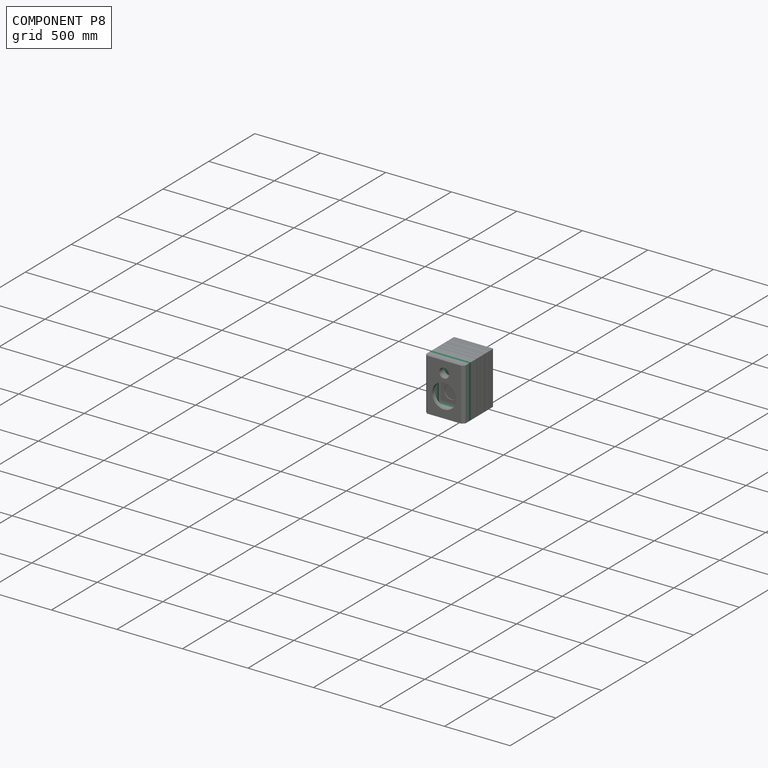
[diagram: component P8 — assembled]
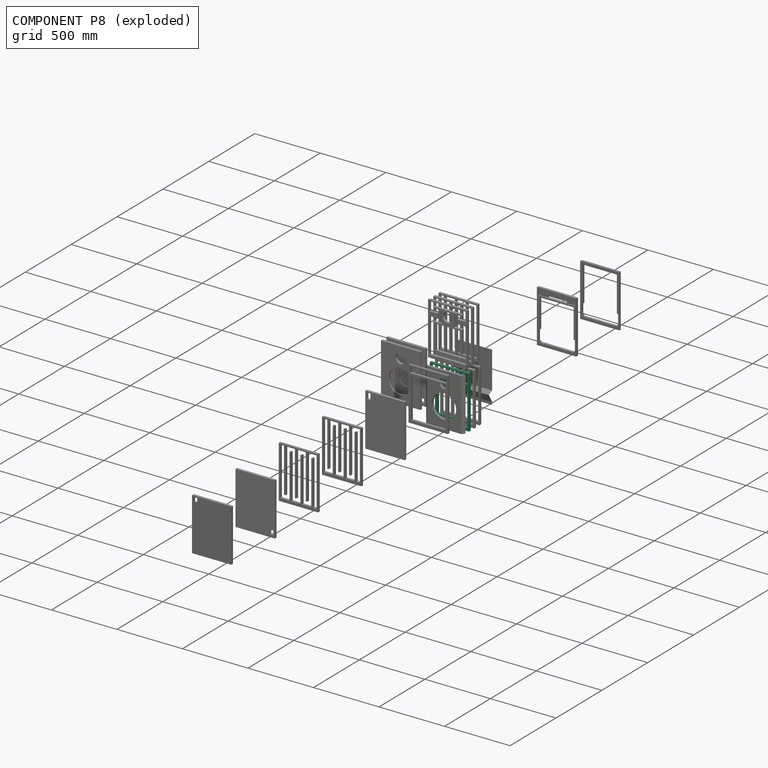
[diagram: component P8 — exploded]
COMPONENT P8 — recipe-attached (CADFS 00117840, mesh-verified: the recipe's output STEP matches this component's geometry to below the mesh-comparison resolution (tessellation chordal tolerance ~0.751 mm)).
Held by: FASTENED mate "Fastened 3" to P6; FASTENED mate "Fastened 5" to P2.
Construction recipe (FeatureScript — the CAD program that rebuilds this solid; sketch coordinates are in the units given by the * unit suffixes, e.g. mm):

FeatureScript 1511;
import(path : "onshape/std/geometry.fs", version : "1511.0");
import(path : "onshape/std/common.fs", version : "1511.0");
const mm = millimeter;
const VERTEX = EntityType.VERTEX;
const EDGE = EntityType.EDGE;
const FACE = EntityType.FACE;
const BODY = EntityType.BODY;
function v(x, y){return vector(x, y);}
function OD(order){return orderDisambiguation(order);}
function OSD(set){return originalSetDisambiguation(set);}
function TD(topology){return topologyDisambiguation(topology);}
function TDD(query){return trueDependencyDisambiguation(query);}
function sQuery(a, b, c) {return sketchEntityQuery(a, b, c);}

annotation { "Feature Type Name" : "Feature", "Feature Type Description" : "" }
export const myFeature = defineFeature(function(context is Context, id is Id, definition is map)
    precondition{}
    {
        {
            var Q0;
            Q0=qCreatedBy(makeId("Front.planeOp"),FACE);
            var sketch = newSketch(context, id + "F0", { "sketchPlane" : qUnion([Q0])});
            skLineSegment(sketch, "E0.bottom", {"start": v(-177.42, 198.29) * mm, "end": v(122.58, 198.29) * mm});
            skLineSegment(sketch, "E0.top", {"start": v(-177.42, -201.71) * mm, "end": v(122.58, -201.71) * mm});
            skLineSegment(sketch, "E0.left", {"start": v(-177.42, 198.29) * mm, "end": v(-177.42, -201.71) * mm});
            skLineSegment(sketch, "E0.right", {"start": v(122.58, 198.29) * mm, "end": v(122.58, -201.71) * mm});
            skSolve(sketch);
        }
        {
            var Q0;
            Q0 = qSketchRegion(id + "F0", true);
            extrude(context, id + "F1", {"entities" : qUnion([Q0]), "depth" : 19 * mm});
        }
        {
            var Q0;
            Q0=makeQuery(id+"F1.opExtrude","CAP_FACE",FACE,{"disambiguationData":[OSD([sQuery(id+"F0.wireOp",EDGE,"E0.bottom"),sQuery(id+"F0.wireOp",EDGE,"E0.top"),sQuery(id+"F0.wireOp",EDGE,"E0.left"),sQuery(id+"F0.wireOp",EDGE,"E0.right")])],"isStart":false});
            var sketch = newSketch(context, id + "F2", { "sketchPlane" : qUnion([Q0])});
            skPoint(sketch, "E1.centerSnap0", {"position": v(-27.42, 198.29) * mm});
            skLineSegment(sketch, "E2", {"start": v(112.08, -179.71) * mm, "end": v(112.08, -149.71) * mm});
            skLineSegment(sketch, "E3", {"start": v(112.08, -149.71) * mm, "end": v(-136.92, -149.71) * mm});
            skLineSegment(sketch, "E4", {"start": v(-136.92, -149.71) * mm, "end": v(-136.92, 55.29) * mm});
            skLineSegment(sketch, "E5", {"start": v(-136.92, 55.29) * mm, "end": v(-74.42, 55.29) * mm});
            skLineSegment(sketch, "E6", {"start": v(-74.42, 55.29) * mm, "end": v(-74.42, 148.29) * mm});
            skLineSegment(sketch, "E7", {"start": v(-74.42, 148.29) * mm, "end": v(-136.92, 148.29) * mm});
            skLineSegment(sketch, "E8", {"start": v(-136.92, 148.29) * mm, "end": v(-136.92, 158.29) * mm});
            skLineSegment(sketch, "E9", {"start": v(-136.92, 158.29) * mm, "end": v(82.08, 158.29) * mm});
            skLineSegment(sketch, "E10", {"start": v(82.08, 158.29) * mm, "end": v(82.08, 148.29) * mm});
            skLineSegment(sketch, "E11", {"start": v(82.08, 148.29) * mm, "end": v(19.58, 148.29) * mm});
            skLineSegment(sketch, "E12", {"start": v(19.58, 148.29) * mm, "end": v(19.58, 55.29) * mm});
            skLineSegment(sketch, "E13", {"start": v(19.58, 55.29) * mm, "end": v(82.08, 55.29) * mm});
            skLineSegment(sketch, "E14", {"start": v(82.08, 55.29) * mm, "end": v(82.08, -109.71) * mm});
            skLineSegment(sketch, "E15", {"start": v(82.08, -109.71) * mm, "end": v(65.08, -109.71) * mm});
            skLineSegment(sketch, "E16", {"start": v(65.08, -109.71) * mm, "end": v(65.08, 45.29) * mm});
            skLineSegment(sketch, "E17", {"start": v(65.08, 45.29) * mm, "end": v(-119.92, 45.29) * mm});
            skLineSegment(sketch, "E18", {"start": v(-119.92, 45.29) * mm, "end": v(-119.92, -139.71) * mm});
            skLineSegment(sketch, "E19", {"start": v(-119.92, -139.71) * mm, "end": v(112.08, -139.71) * mm});
            skLineSegment(sketch, "E20", {"start": v(112.08, -139.71) * mm, "end": v(112.08, 85.29) * mm});
            skLineSegment(sketch, "E21", {"start": v(112.08, 85.29) * mm, "end": v(49.58, 85.29) * mm});
            skLineSegment(sketch, "E22", {"start": v(49.58, 85.29) * mm, "end": v(49.58, 118.29) * mm});
            skLineSegment(sketch, "E23", {"start": v(49.58, 118.29) * mm, "end": v(112.08, 118.29) * mm});
            skLineSegment(sketch, "E24", {"start": v(112.08, 118.29) * mm, "end": v(112.08, 188.29) * mm});
            skLineSegment(sketch, "E25", {"start": v(112.08, 188.29) * mm, "end": v(-166.92, 188.29) * mm});
            skLineSegment(sketch, "E26", {"start": v(-166.92, 188.29) * mm, "end": v(-166.92, 118.29) * mm});
            skLineSegment(sketch, "E27", {"start": v(-166.92, 118.29) * mm, "end": v(-104.42, 118.29) * mm});
            skLineSegment(sketch, "E28", {"start": v(-104.42, 118.29) * mm, "end": v(-104.42, 85.29) * mm});
            skLineSegment(sketch, "E29", {"start": v(-104.42, 85.29) * mm, "end": v(-166.92, 85.29) * mm});
            skLineSegment(sketch, "E30", {"start": v(-166.92, 85.29) * mm, "end": v(-166.92, -179.71) * mm});
            skLineSegment(sketch, "E31", {"start": v(-166.92, -179.71) * mm, "end": v(112.08, -179.71) * mm});
            skSolve(sketch);
        }
        {
            var Q0;
            Q0 = qSketchRegion(id + "F2", true);
            extrude(context, id + "F3", {"entities" : qUnion([Q0]), "operationType" : NewBodyOperationType.REMOVE, "oppositeDirection" : true, "depth" : 19 * mm});
        }
    });
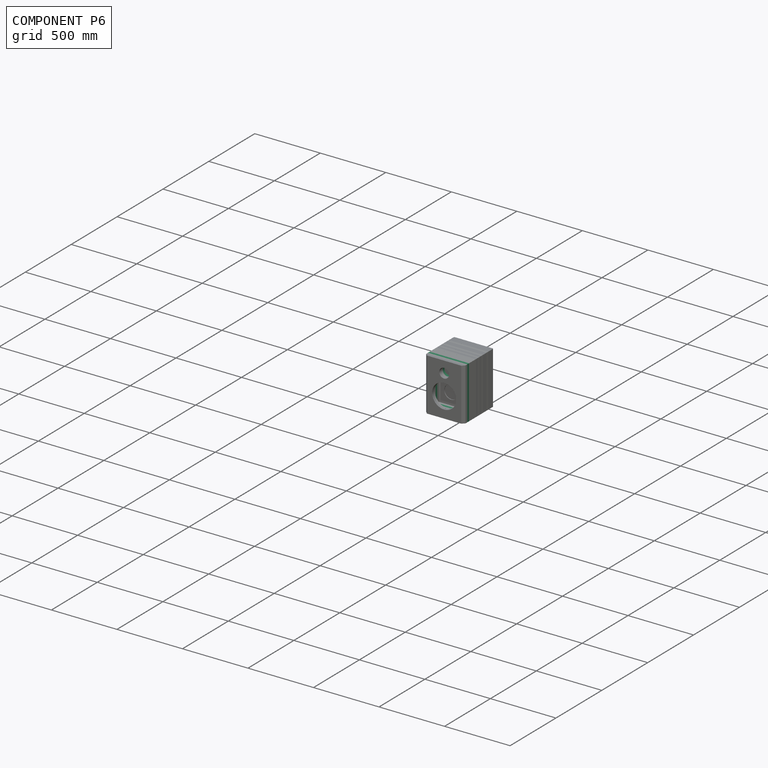
[diagram: component P6 — assembled]
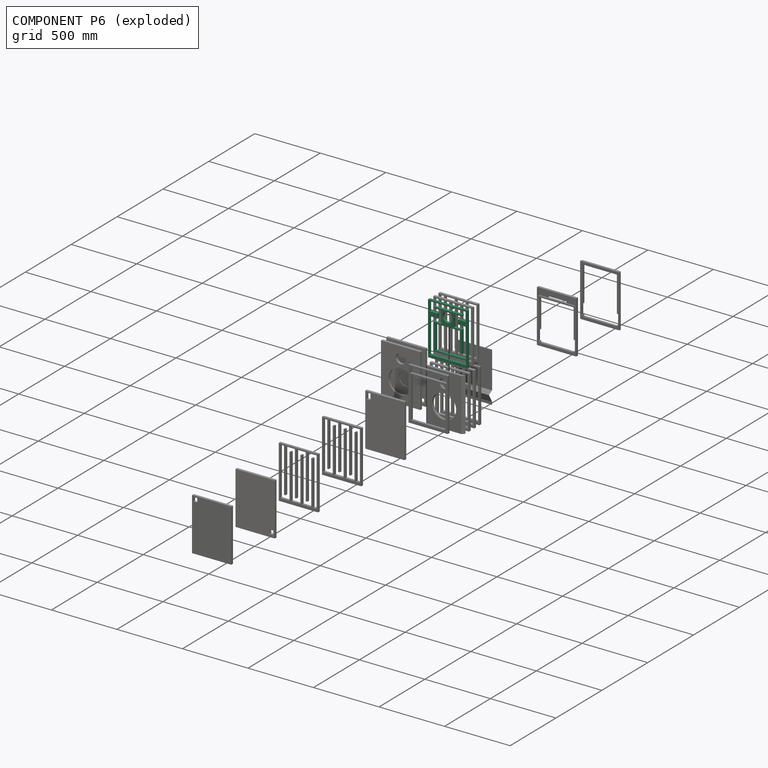
[diagram: component P6 — exploded]
COMPONENT P6 — recipe-attached (CADFS 00117839, mesh-verified: the recipe's output STEP matches this component's geometry to below the mesh-comparison resolution (tessellation chordal tolerance ~0.751 mm)).
Held by: FASTENED mate "Fastened 3" to P8; FASTENED mate "Fastened 2" to P12.
Construction recipe (FeatureScript — the CAD program that rebuilds this solid; sketch coordinates are in the units given by the * unit suffixes, e.g. mm):

FeatureScript 1511;
import(path : "onshape/std/geometry.fs", version : "1511.0");
import(path : "onshape/std/common.fs", version : "1511.0");
const mm = millimeter;
const VERTEX = EntityType.VERTEX;
const EDGE = EntityType.EDGE;
const FACE = EntityType.FACE;
const BODY = EntityType.BODY;
function v(x, y){return vector(x, y);}
function OD(order){return orderDisambiguation(order);}
function OSD(set){return originalSetDisambiguation(set);}
function TD(topology){return topologyDisambiguation(topology);}
function TDD(query){return trueDependencyDisambiguation(query);}
function sQuery(a, b, c) {return sketchEntityQuery(a, b, c);}

annotation { "Feature Type Name" : "Feature", "Feature Type Description" : "" }
export const myFeature = defineFeature(function(context is Context, id is Id, definition is map)
    precondition{}
    {
        {
            var Q0;
            Q0=qCreatedBy(makeId("Front.planeOp"),FACE);
            var sketch = newSketch(context, id + "F0", { "sketchPlane" : qUnion([Q0])});
            skLineSegment(sketch, "E0.bottom", {"start": v(-161.3, 309.05) * mm, "end": v(138.7, 309.05) * mm});
            skLineSegment(sketch, "E0.top", {"start": v(-161.3, -90.95) * mm, "end": v(138.7, -90.95) * mm});
            skLineSegment(sketch, "E0.left", {"start": v(-161.3, 309.05) * mm, "end": v(-161.3, -90.95) * mm});
            skLineSegment(sketch, "E0.right", {"start": v(138.7, 309.05) * mm, "end": v(138.7, -90.95) * mm});
            skLineSegment(sketch, "E1.left", {"start": v(-161.3, 309.05) * mm, "end": v(-161.3, 309.05) * mm});
            skLineSegment(sketch, "E1.right", {"start": v(138.7, 309.05) * mm, "end": v(138.7, 309.05) * mm});
            skSolve(sketch);
        }
        {
            var Q0;
            Q0 = qSketchRegion(id + "F0", true);
            extrude(context, id + "F1", {"entities" : qUnion([Q0]), "depth" : 19 * mm});
        }
        {
            var Q0;
            Q0=makeQuery(id+"F1.opExtrude","CAP_FACE",FACE,{"disambiguationData":[OSD([sQuery(id+"F0.wireOp",EDGE,"E0.top"),sQuery(id+"F0.wireOp",EDGE,"E0.left"),sQuery(id+"F0.wireOp",EDGE,"E0.right"),sQuery(id+"F0.wireOp",EDGE,"E0.bottom")])],"isStart":false});
            var sketch = newSketch(context, id + "F2", { "sketchPlane" : qUnion([Q0])});
            skCircle(sketch, "E2", {"center": v(-11.3, 222.05) * mm, "radius": 37 * mm});
            skPoint(sketch, "E2.centerSnap0", {"position": v(-11.3, 309.05) * mm});
            skLineSegment(sketch, "E3", {"start": v(128.2, -38.95) * mm, "end": v(128.2, -68.95) * mm});
            skLineSegment(sketch, "E4", {"start": v(128.2, -68.95) * mm, "end": v(-150.8, -68.95) * mm});
            skLineSegment(sketch, "E5", {"start": v(-150.8, -68.95) * mm, "end": v(-150.8, 196.05) * mm});
            skLineSegment(sketch, "E6", {"start": v(-150.8, 196.05) * mm, "end": v(-88.3, 196.05) * mm});
            skLineSegment(sketch, "E7", {"start": v(-88.3, 196.05) * mm, "end": v(-88.3, 229.05) * mm});
            skLineSegment(sketch, "E8", {"start": v(-88.3, 229.05) * mm, "end": v(-150.8, 229.05) * mm});
            skLineSegment(sketch, "E9", {"start": v(-150.8, 229.05) * mm, "end": v(-150.8, 299.05) * mm});
            skLineSegment(sketch, "E10", {"start": v(-150.8, 299.05) * mm, "end": v(128.2, 299.05) * mm});
            skLineSegment(sketch, "E11", {"start": v(128.2, 299.05) * mm, "end": v(128.2, 229.05) * mm});
            skLineSegment(sketch, "E12", {"start": v(128.2, 229.05) * mm, "end": v(65.7, 229.05) * mm});
            skLineSegment(sketch, "E13", {"start": v(65.7, 229.05) * mm, "end": v(65.7, 196.05) * mm});
            skLineSegment(sketch, "E14", {"start": v(65.7, 196.05) * mm, "end": v(128.2, 196.05) * mm});
            skLineSegment(sketch, "E15", {"start": v(128.2, 196.05) * mm, "end": v(128.2, -28.95) * mm});
            skLineSegment(sketch, "E16", {"start": v(128.2, -28.95) * mm, "end": v(-103.8, -28.95) * mm});
            skLineSegment(sketch, "E17", {"start": v(-103.8, -28.95) * mm, "end": v(-103.8, 156.05) * mm});
            skLineSegment(sketch, "E18", {"start": v(-103.8, 156.05) * mm, "end": v(81.2, 156.05) * mm});
            skLineSegment(sketch, "E19", {"start": v(81.2, 156.05) * mm, "end": v(81.2, 1.05) * mm});
            skLineSegment(sketch, "E20", {"start": v(81.2, 1.05) * mm, "end": v(98.2, 1.05) * mm});
            skLineSegment(sketch, "E21", {"start": v(98.2, 1.05) * mm, "end": v(98.2, 166.05) * mm});
            skLineSegment(sketch, "E22", {"start": v(98.2, 166.05) * mm, "end": v(35.7, 166.05) * mm});
            skLineSegment(sketch, "E23", {"start": v(35.7, 166.05) * mm, "end": v(35.7, 259.05) * mm});
            skLineSegment(sketch, "E24", {"start": v(35.7, 259.05) * mm, "end": v(98.2, 259.05) * mm});
            skLineSegment(sketch, "E25", {"start": v(98.2, 259.05) * mm, "end": v(98.2, 269.05) * mm});
            skLineSegment(sketch, "E26", {"start": v(98.2, 269.05) * mm, "end": v(-120.8, 269.05) * mm});
            skLineSegment(sketch, "E27", {"start": v(-120.8, 269.05) * mm, "end": v(-120.8, 259.05) * mm});
            skLineSegment(sketch, "E28", {"start": v(-120.8, 259.05) * mm, "end": v(-58.3, 259.05) * mm});
            skLineSegment(sketch, "E29", {"start": v(-58.3, 259.05) * mm, "end": v(-58.3, 166.05) * mm});
            skLineSegment(sketch, "E30", {"start": v(-58.3, 166.05) * mm, "end": v(-120.8, 166.05) * mm});
            skLineSegment(sketch, "E31", {"start": v(-120.8, 166.05) * mm, "end": v(-120.8, -38.95) * mm});
            skLineSegment(sketch, "E32", {"start": v(-120.8, -38.95) * mm, "end": v(128.2, -38.95) * mm});
            skSolve(sketch);
        }
        {
            var Q0;
            Q0 = qSketchRegion(id + "F2", true);
            var Q1;
            Q1=makeQuery(id+"F2.imprint","IMPRINT",FACE,{"disambiguationData":[TD([[makeQuery(id+"F2.imprint","IMPRINT",EDGE,{"derivedFrom":sQuery(id+"F2.wireOp",EDGE,"E3")}),-1.0]])]});
            extrude(context, id + "F3", {"entities" : qUnion([Q0, Q1]), "operationType" : NewBodyOperationType.REMOVE, "oppositeDirection" : true, "depth" : 19 * mm});
        }
    });
